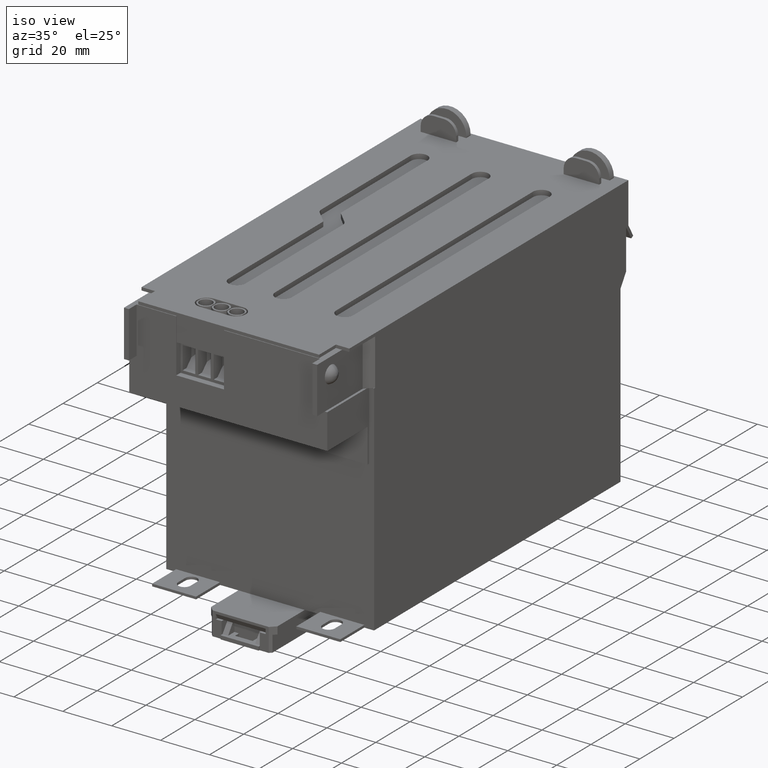
[diagram: clean part render]
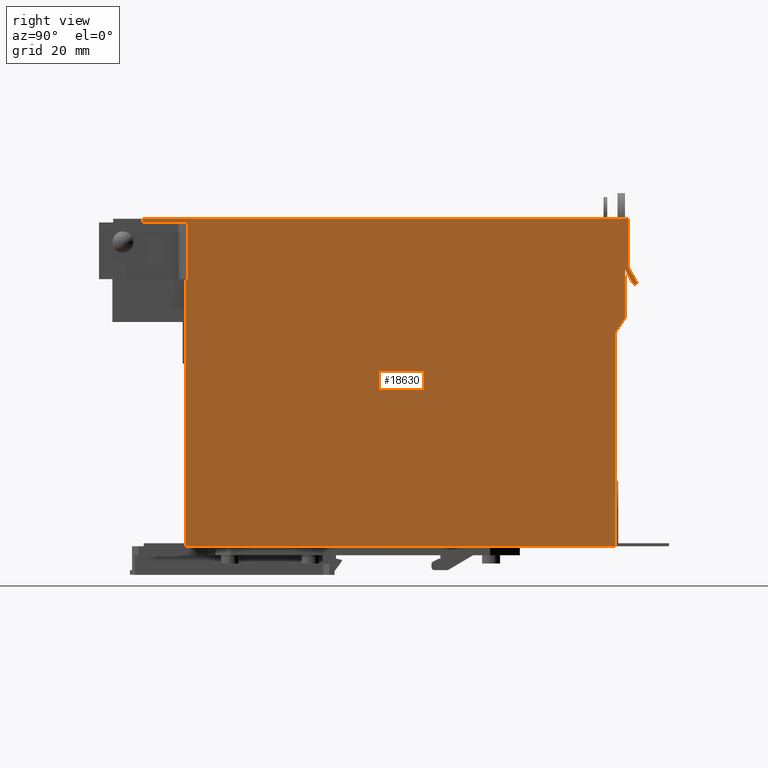
[diagram: tour spotlight — one face highlighted and labeled with its STEP entity id]
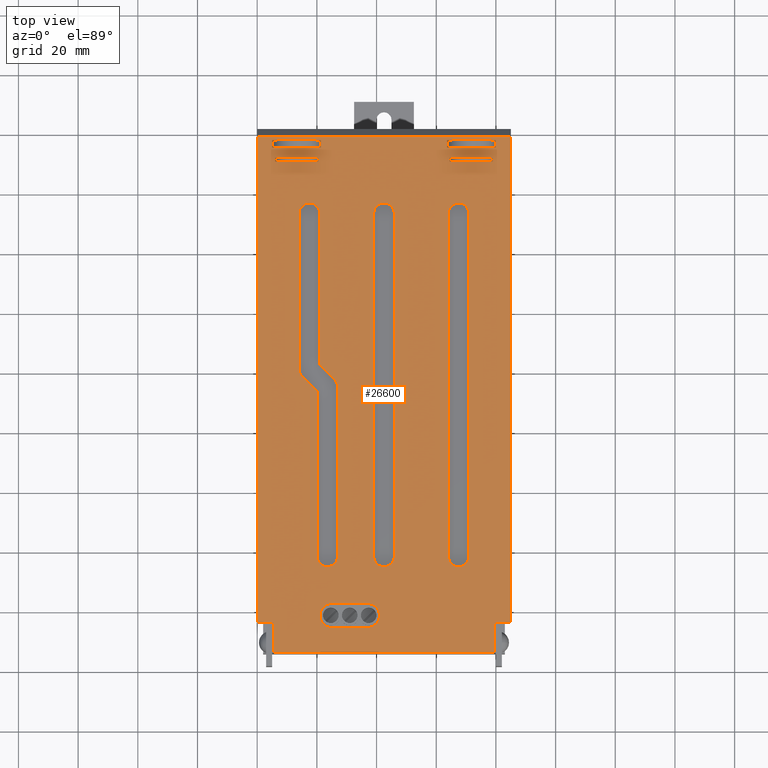
[diagram: tour spotlight — one face highlighted and labeled with its STEP entity id]
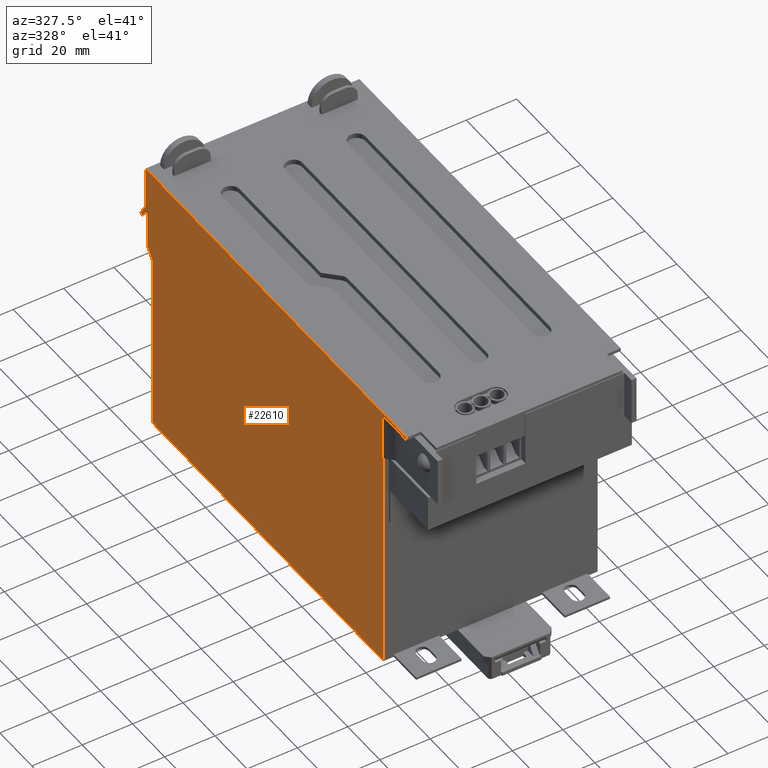
[diagram: tour spotlight — one face highlighted and labeled with its STEP entity id]
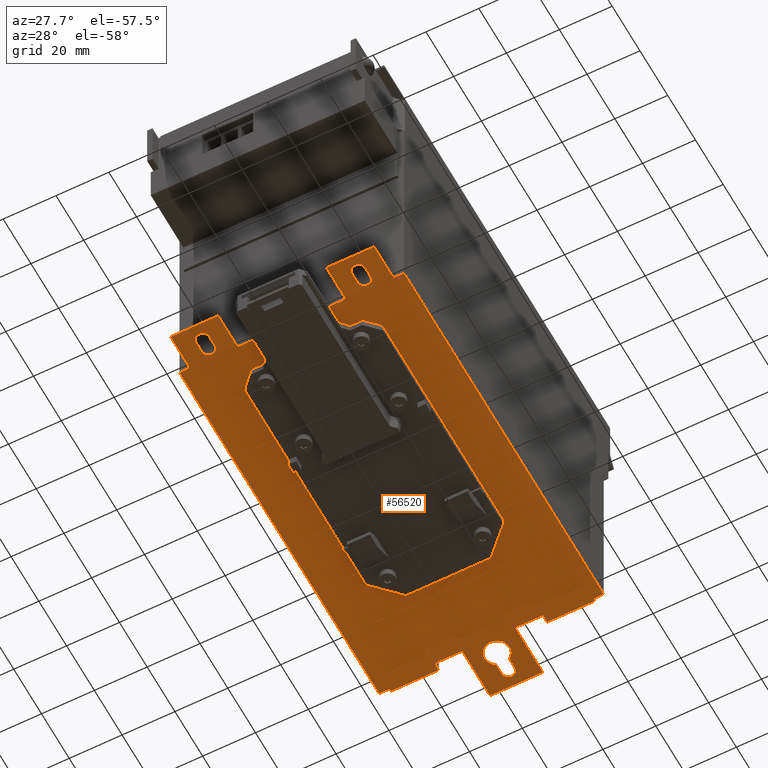
[diagram: tour spotlight — one face highlighted and labeled with its STEP entity id]
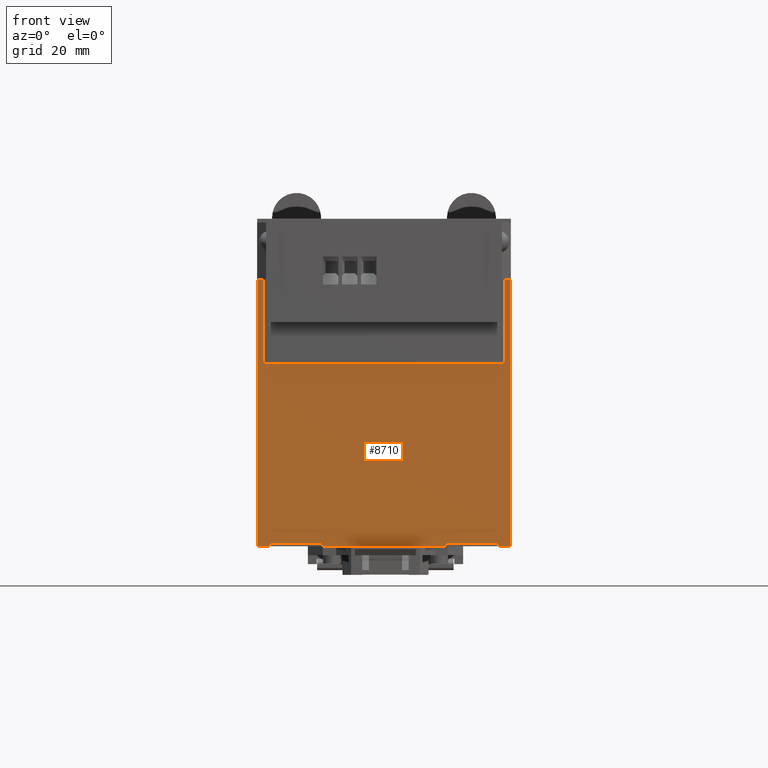
[diagram: tour spotlight — one face highlighted and labeled with its STEP entity id]
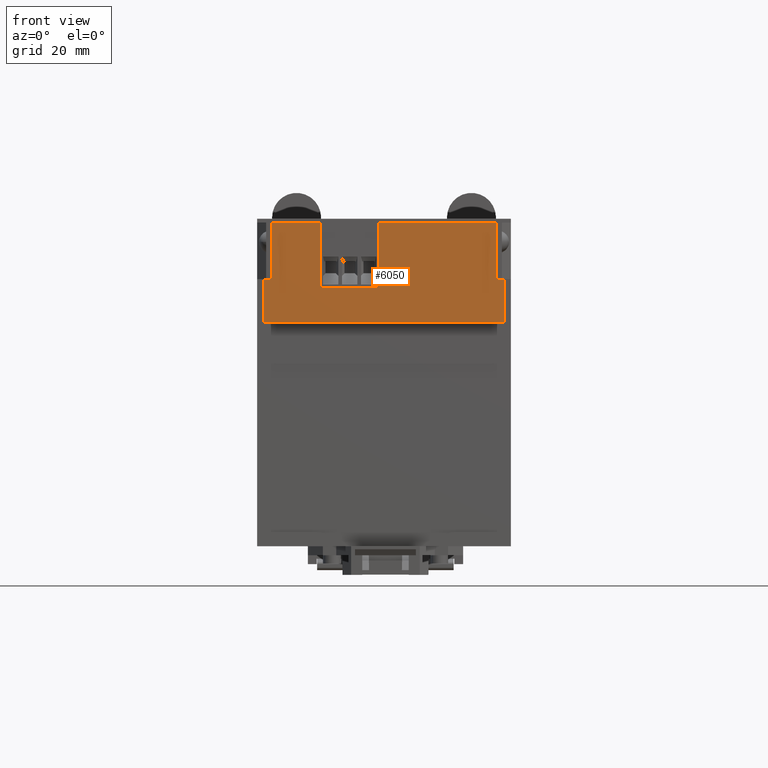
[diagram: tour spotlight — one face highlighted and labeled with its STEP entity id]
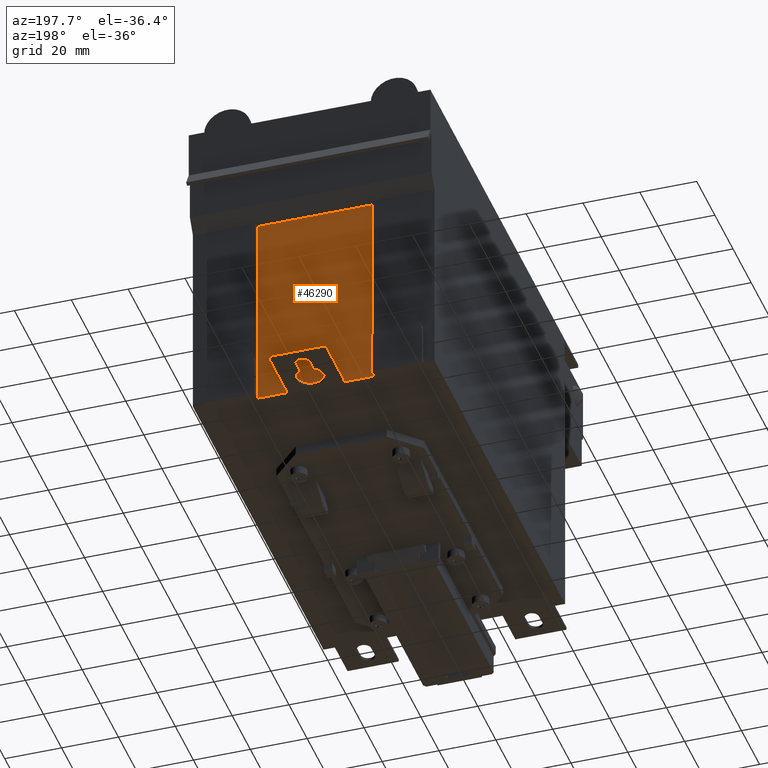
[diagram: tour spotlight — one face highlighted and labeled with its STEP entity id]
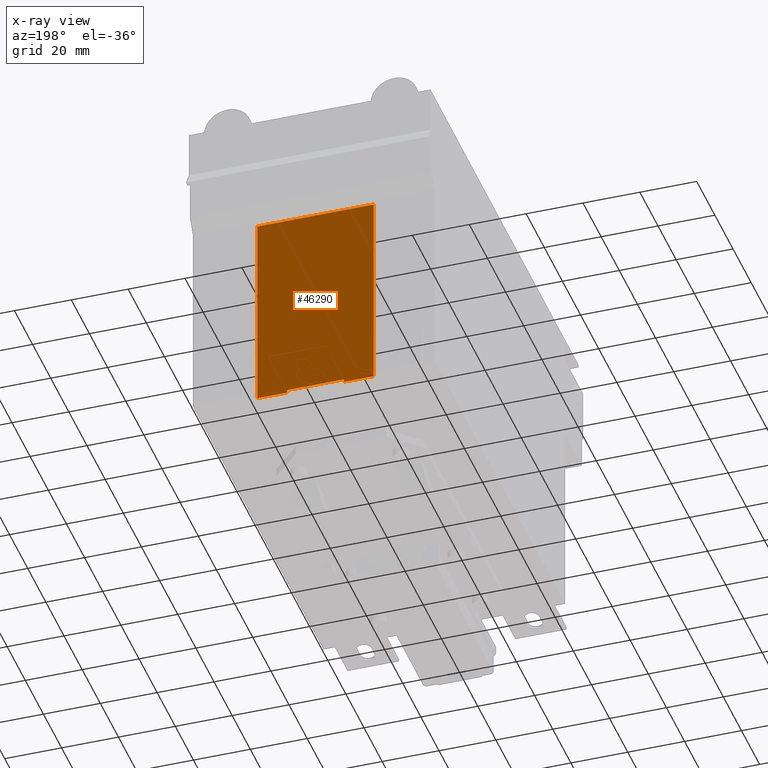
[diagram: x-ray of the same camera — body ghosted, this tour face saturated]
A machine part: a face-by-face anatomy tour. The part has 370 B-rep faces; the first image is the clean iso view, then the 7 largest visible faces are spotlighted one at a time (largest first), each with its STEP entity span.

Face 1 — right view, entity #18630. In plain terms, the highlighted planar face has unit normal (1, -0, -0).
Definition (entity closure, byte-faithful):
#7670=CARTESIAN_POINT('',(42.5,88.5,1.));
#7680=VERTEX_POINT('',#7670);
#7710=CARTESIAN_POINT('',(42.5,0.,1.));
#7720=DIRECTION('',(0.,-1.,0.));
#7730=VECTOR('',#7720,1.);
#7740=LINE('',#7710,#7730);
#7750=CARTESIAN_POINT('',(42.5,-1.,1.));
#7760=VERTEX_POINT('',#7750);
#7770=EDGE_CURVE('',#7680,#7760,#7740,.T.);
#9310=CARTESIAN_POINT('',(42.5,0.,0.414213562370027));
#9320=DIRECTION('',(0.,-1.,0.));
#9330=VECTOR('',#9320,1.);
#9340=LINE('',#9310,#9330);
#9350=CARTESIAN_POINT('',(42.5,107.5,0.414213562370027));
#9360=VERTEX_POINT('',#9350);
#9370=CARTESIAN_POINT('',(42.5,88.5,0.414213562370027));
#9380=VERTEX_POINT('',#9370);
#9390=EDGE_CURVE('',#9360,#9380,#9340,.T.);
#17540=CARTESIAN_POINT('',(42.5,111.492106913472,19.5959203938679));
#17550=DIRECTION('',(1.,0.,0.));
#17560=DIRECTION('',(0.,-1.,0.));
#17570=AXIS2_PLACEMENT_3D('',#17540,#17550,#17560);
#17580=PLANE('',#17570);
#17590=CARTESIAN_POINT('',(42.5,-1.,0.));
#17600=DIRECTION('',(0.,0.,1.));
#17610=VECTOR('',#17600,1.);
#17620=LINE('',#17590,#17610);
#17630=CARTESIAN_POINT('',(42.5,-1.,-143.));
#17640=VERTEX_POINT('',#17630);
#17650=EDGE_CURVE('',#17640,#7760,#17620,.T.);
#17660=ORIENTED_EDGE('',*,*,#17650,.F.);
#17670=ORIENTED_EDGE('',*,*,#7770,.T.);
#17680=CARTESIAN_POINT('',(42.5,88.5,0.));
#17690=DIRECTION('',(0.,0.,1.));
#17700=VECTOR('',#17690,1.);
#17710=LINE('',#17680,#17700);
#17720=EDGE_CURVE('',#9380,#7680,#17710,.T.);
#17730=ORIENTED_EDGE('',*,*,#17720,.T.);
#17740=ORIENTED_EDGE('',*,*,#9390,.T.);
#17750=CARTESIAN_POINT('',(42.5,107.5,0.));
#17760=DIRECTION('',(0.,0.,-1.));
#17770=VECTOR('',#17760,1.);
#17780=LINE('',#17750,#17770);
#17790=CARTESIAN_POINT('',(42.5,107.5,15.45));
#17800=VERTEX_POINT('',#17790);
#17810=EDGE_CURVE('',#17800,#9360,#17780,.T.);
#17820=ORIENTED_EDGE('',*,*,#17810,.T.);
#17830=CARTESIAN_POINT('',(42.5,0.,15.45));
#17840=DIRECTION('',(0.,1.,0.));
#17850=VECTOR('',#17840,1.);
#17860=LINE('',#17830,#17850);
#17870=CARTESIAN_POINT('',(42.5,108.748292500948,15.45));
#17880=VERTEX_POINT('',#17870);
#17890=EDGE_CURVE('',#17800,#17880,#17860,.T.);
#17900=ORIENTED_EDGE('',*,*,#17890,.F.);
#17910=CARTESIAN_POINT('',(42.5,108.748292500948,0.));
#17920=DIRECTION('',(0.,0.,-1.));
#17930=VECTOR('',#17920,1.);
#17940=LINE('',#17910,#17930);
#17950=CARTESIAN_POINT('',(42.5,108.748292500948,-147.55));
#17960=VERTEX_POINT('',#17950);
#17970=EDGE_CURVE('',#17880,#17960,#17940,.T.);
#17980=ORIENTED_EDGE('',*,*,#17970,.F.);
#17990=CARTESIAN_POINT('',(42.5,0.,-147.55));
#18000=DIRECTION('',(0.,1.,0.));
#18010=VECTOR('',#18000,1.);
#18020=LINE('',#17990,#18010);
#18030=CARTESIAN_POINT('',(42.5,92.0849364904861,-147.55));
#18040=VERTEX_POINT('',#18030);
#18050=EDGE_CURVE('',#18040,#17960,#18020,.T.);
#18060=ORIENTED_EDGE('',*,*,#18050,.T.);
#18070=CARTESIAN_POINT('',(42.5,0.,-200.715262871093));
#18080=DIRECTION('',(0.,-0.866025403784433,-0.50000000000001));
#18090=VECTOR('',#18080,1.);
#18100=LINE('',#18070,#18090);
#18110=CARTESIAN_POINT('',(42.5,87.1788475772627,-150.382531754718));
#18120=VERTEX_POINT('',#18110);
#18130=EDGE_CURVE('',#18040,#18120,#18100,.T.);
#18140=ORIENTED_EDGE('',*,*,#18130,.F.);
#18150=CARTESIAN_POINT('',(42.5,0.355452387253636,0.));
#18160=DIRECTION('',(0.,-0.500000000000023,0.866025403784426));
#18170=VECTOR('',#18160,1.);
#18180=LINE('',#18150,#18170);
#18190=CARTESIAN_POINT('',(42.5,86.5538475772759,-149.30000000001));
#18200=VERTEX_POINT('',#18190);
#18210=EDGE_CURVE('',#18120,#18200,#18180,.T.);
#18220=ORIENTED_EDGE('',*,*,#18210,.F.);
#18230=CARTESIAN_POINT('',(42.5,0.,-199.27188719815));
#18240=DIRECTION('',(0.,-0.866025403784432,-0.500000000000011));
#18250=VECTOR('',#18240,1.);
#18260=LINE('',#18230,#18250);
#18270=CARTESIAN_POINT('',(42.5,91.75,-146.3));
#18280=VERTEX_POINT('',#18270);
#18290=EDGE_CURVE('',#18280,#18200,#18260,.T.);
#18300=ORIENTED_EDGE('',*,*,#18290,.T.);
#18310=CARTESIAN_POINT('',(42.5,91.75,0.));
#18320=DIRECTION('',(0.,0.,1.));
#18330=VECTOR('',#18320,1.);
#18340=LINE('',#18310,#18330);
#18350=CARTESIAN_POINT('',(42.5,91.75,-146.2565865962));
#18360=VERTEX_POINT('',#18350);
#18370=EDGE_CURVE('',#18280,#18360,#18340,.T.);
#18380=ORIENTED_EDGE('',*,*,#18370,.F.);
#18390=CARTESIAN_POINT('',(42.5,0.,-146.2565865962));
#18400=DIRECTION('',(0.,-1.,0.));
#18410=VECTOR('',#18400,1.);
#18420=LINE('',#18390,#18410);
#18430=CARTESIAN_POINT('',(42.5,75.4609170961234,-146.2565865962));
#18440=VERTEX_POINT('',#18430);
#18450=EDGE_CURVE('',#18360,#18440,#18420,.T.);
#18460=ORIENTED_EDGE('',*,*,#18450,.F.);
#18470=CARTESIAN_POINT('',(42.5,0.,-97.2516940443306));
#18480=DIRECTION('',(0.,-0.838670567945429,0.54463903501502));
#18490=VECTOR('',#18480,1.);
#18500=LINE('',#18470,#18490);
#18510=CARTESIAN_POINT('',(42.5,70.4462134950067,-143.));
#18520=VERTEX_POINT('',#18510);
#18530=EDGE_CURVE('',#18440,#18520,#18500,.T.);
#18540=ORIENTED_EDGE('',*,*,#18530,.F.);
#18550=CARTESIAN_POINT('',(42.5,0.,-143.));
#18560=DIRECTION('',(0.,1.,0.));
#18570=VECTOR('',#18560,1.);
#18580=LINE('',#18550,#18570);
#18590=EDGE_CURVE('',#17640,#18520,#18580,.T.);
#18600=ORIENTED_EDGE('',*,*,#18590,.T.);
#18610=EDGE_LOOP('',(#18600,#18540,#18460,#18380,#18300,#18220,#18140,
#18060,#17980,#17900,#17820,#17740,#17730,#17670,#17660));
#18620=FACE_OUTER_BOUND('',#18610,.T.);
#18630=ADVANCED_FACE('',(#18620),#17580,.T.);

Face 2 — top view, entity #26600. In plain terms, the highlighted planar face has unit normal (0, 0, 1).
Definition (entity closure, byte-faithful):
#1800=CARTESIAN_POINT('',(22.,108.748872513054,0.));
#1810=DIRECTION('',(0.,0.,1.));
#1820=VECTOR('',#1810,1.);
#1830=LINE('',#1800,#1820);
#1840=CARTESIAN_POINT('',(22.,108.748872513054,-140.3));
#1850=VERTEX_POINT('',#1840);
#1860=CARTESIAN_POINT('',(22.,108.748872513054,-139.05));
#1870=VERTEX_POINT('',#1860);
#1880=EDGE_CURVE('',#1850,#1870,#1830,.T.);
#2270=CARTESIAN_POINT('',(0.,108.74949496507,15.45));
#2280=DIRECTION('',(-0.999999999599746,2.8293273437604E-5,0.));
#2290=VECTOR('',#2280,1.);
#2300=LINE('',#2270,#2290);
#2310=CARTESIAN_POINT('',(-37.,108.750541816187,15.45));
#2320=VERTEX_POINT('',#2310);
#2330=CARTESIAN_POINT('',(-42.5,108.750697429191,15.45));
#2340=VERTEX_POINT('',#2330);
#2350=EDGE_CURVE('',#2320,#2340,#2300,.T.);
#15190=CARTESIAN_POINT('',(-17.5050452697898,108.749990240102,17.05));
#15200=VERTEX_POINT('',#15190);
#15370=CARTESIAN_POINT('',(-5.50504528900204,108.749650720822,17.05));
#15380=VERTEX_POINT('',#15370);
#15410=CARTESIAN_POINT('',(0.,108.74949496507,17.05));
#15420=DIRECTION('',(0.999999999599746,-2.8293273437604E-5,0.));
#15430=VECTOR('',#15420,1.);
#15440=LINE('',#15410,#15430);
#15450=EDGE_CURVE('',#15200,#15380,#15440,.T.);
#15840=CARTESIAN_POINT('',(-36.5,108.750527669551,-140.3));
#15850=VERTEX_POINT('',#15840);
#15880=CARTESIAN_POINT('',(0.,108.74949496507,-140.3));
#15890=DIRECTION('',(0.999999999599746,-2.8293273437604E-5,0.));
#15900=VECTOR('',#15890,1.);
#15910=LINE('',#15880,#15900);
#15920=CARTESIAN_POINT('',(-22.,108.750117417086,-140.3));
#15930=VERTEX_POINT('',#15920);
#15940=EDGE_CURVE('',#15850,#15930,#15910,.T.);
#16640=CARTESIAN_POINT('',(-17.5050452709276,108.749990240102,
13.050000000015));
#16650=DIRECTION('',(-2.82932734344495E-5,-0.999999999599746,0.));
#16660=DIRECTION('',(-0.999999999599746,2.82932734344495E-5,0.));
#16670=AXIS2_PLACEMENT_3D('',#16640,#16650,#16660);
#16680=CIRCLE('',#16670,3.99999999998498);
#16690=CARTESIAN_POINT('',(-17.5050452697898,108.749990240102,9.05));
#16700=VERTEX_POINT('',#16690);
#16710=EDGE_CURVE('',#15200,#16700,#16680,.T.);
#17870=CARTESIAN_POINT('',(42.5,108.748292500948,15.45));
#17880=VERTEX_POINT('',#17870);
#17910=CARTESIAN_POINT('',(42.5,108.748292500948,0.));
#17920=DIRECTION('',(0.,0.,-1.));
#17930=VECTOR('',#17920,1.);
#17940=LINE('',#17910,#17930);
#17950=CARTESIAN_POINT('',(42.5,108.748292500948,-147.55));
#17960=VERTEX_POINT('',#17950);
#17970=EDGE_CURVE('',#17880,#17960,#17940,.T.);
#22330=CARTESIAN_POINT('',(-42.5,108.750697429191,-147.55));
#22340=VERTEX_POINT('',#22330);
#22370=CARTESIAN_POINT('',(-42.5,108.750697429191,0.));
#22380=DIRECTION('',(0.,0.,-1.));
#22390=VECTOR('',#22380,1.);
#22400=LINE('',#22370,#22390);
#22410=EDGE_CURVE('',#2340,#22340,#22400,.T.);
#23010=CARTESIAN_POINT('',(-44.6251071,108.750757555428,29.5701071));
#23020=DIRECTION('',(2.8293273437604E-5,0.999999999599746,0.));
#23030=DIRECTION('',(0.999999999599746,-2.8293273437604E-5,0.));
#23040=AXIS2_PLACEMENT_3D('',#23010,#23020,#23030);
#23050=PLANE('',#23040);
#23060=CARTESIAN_POINT('',(0.,108.74949496507,15.45));
#23070=DIRECTION('',(-0.999999999599746,2.8293273437604E-5,0.));
#23080=VECTOR('',#23070,1.);
#23090=LINE('',#23060,#23080);
#23100=CARTESIAN_POINT('',(36.9999999560921,108.748448113953,15.45));
#23110=VERTEX_POINT('',#23100);
#23120=EDGE_CURVE('',#17880,#23110,#23090,.T.);
#23130=ORIENTED_EDGE('',*,*,#23120,.F.);
#23140=CARTESIAN_POINT('',(37.,108.748448113952,0.));
#23150=DIRECTION('',(0.,0.,1.));
#23160=VECTOR('',#23150,1.);
#23170=LINE('',#23140,#23160);
#23180=CARTESIAN_POINT('',(36.9999999560921,108.748448113953,25.25));
#23190=VERTEX_POINT('',#23180);
#23200=EDGE_CURVE('',#23110,#23190,#23170,.T.);
#23210=ORIENTED_EDGE('',*,*,#23200,.F.);
#23220=CARTESIAN_POINT('',(0.,108.74949496507,25.25));
#23230=DIRECTION('',(-0.999999999599746,2.8293273437604E-5,0.));
#23240=VECTOR('',#23230,1.);
#23250=LINE('',#23220,#23240);
#23260=CARTESIAN_POINT('',(-37.,108.750541816187,25.25));
#23270=VERTEX_POINT('',#23260);
#23280=EDGE_CURVE('',#23190,#23270,#23250,.T.);
#23290=ORIENTED_EDGE('',*,*,#23280,.F.);
#23300=CARTESIAN_POINT('',(-37.,108.750541816187,0.));
#23310=DIRECTION('',(0.,0.,-1.));
#23320=VECTOR('',#23310,1.);
#23330=LINE('',#23300,#23320);
#23340=EDGE_CURVE('',#23270,#2320,#23330,.T.);
#23350=ORIENTED_EDGE('',*,*,#23340,.F.);
#23360=ORIENTED_EDGE('',*,*,#2350,.F.);
#23370=ORIENTED_EDGE('',*,*,#22410,.F.);
#23380=CARTESIAN_POINT('',(0.,108.74949496507,-147.55));
#23390=DIRECTION('',(0.999999999599746,-2.8293273437604E-5,0.));
#23400=VECTOR('',#23390,1.);
#23410=LINE('',#23380,#23400);
#23420=EDGE_CURVE('',#22340,#17960,#23410,.T.);
#23430=ORIENTED_EDGE('',*,*,#23420,.F.);
#23440=ORIENTED_EDGE('',*,*,#17970,.T.);
#23450=EDGE_LOOP('',(#23440,#23430,#23370,#23360,#23350,#23290,#23210,
#23130));
#23460=FACE_OUTER_BOUND('',#23450,.T.);
#23470=CARTESIAN_POINT('',(-5.50499999862161,108.74965071954,
13.050000000016));
#23480=DIRECTION('',(-2.82932734448883E-5,-0.999999999599745,0.));
#23490=DIRECTION('',(-0.999999999599745,2.82932734448883E-5,0.));
#23500=AXIS2_PLACEMENT_3D('',#23470,#23480,#23490);
#23510=CIRCLE('',#23500,4.000000000016);
#23520=CARTESIAN_POINT('',(-5.50504528900204,108.749650720822,
9.05000000025638));
#23530=VERTEX_POINT('',#23520);
#23540=EDGE_CURVE('',#23530,#15380,#23510,.T.);
#23550=ORIENTED_EDGE('',*,*,#23540,.T.);
#23560=CARTESIAN_POINT('',(0.,108.74949496507,9.05));
#23570=DIRECTION('',(-0.999999999599746,2.8293273437604E-5,0.));
#23580=VECTOR('',#23570,1.);
#23590=LINE('',#23560,#23580);
#23600=EDGE_CURVE('',#23530,#16700,#23590,.T.);
#23610=ORIENTED_EDGE('',*,*,#23600,.F.);
#23620=ORIENTED_EDGE('',*,*,#16710,.T.);
#23630=ORIENTED_EDGE('',*,*,#15450,.F.);
#23640=EDGE_LOOP('',(#23630,#23620,#23610,#23550));
#23650=FACE_BOUND('',#23640,.T.);
#23660=CARTESIAN_POINT('',(-37.5,108.750555962824,0.));
#23670=DIRECTION('',(0.,0.,-1.));
#23680=VECTOR('',#23670,1.);
#23690=LINE('',#23660,#23680);
#23700=CARTESIAN_POINT('',(-37.5,108.750555962824,-143.7565865962));
#23710=VERTEX_POINT('',#23700);
#23720=CARTESIAN_POINT('',(-37.5,108.750555962824,-146.2565865962));
#23730=VERTEX_POINT('',#23720);
#23740=EDGE_CURVE('',#23710,#23730,#23690,.T.);
#23750=ORIENTED_EDGE('',*,*,#23740,.T.);
#23760=CARTESIAN_POINT('',(0.,108.74949496507,-143.7565865962));
#23770=DIRECTION('',(-0.999999999599746,2.8293273437604E-5,0.));
#23780=VECTOR('',#23770,1.);
#23790=LINE('',#23760,#23780);
#23800=CARTESIAN_POINT('',(-21.1,108.75009195314,-143.7565865962));
#23810=VERTEX_POINT('',#23800);
#23820=EDGE_CURVE('',#23810,#23710,#23790,.T.);
#23830=ORIENTED_EDGE('',*,*,#23820,.T.);
#23840=CARTESIAN_POINT('',(-21.1,108.75009195314,0.));
#23850=DIRECTION('',(0.,0.,1.));
#23860=VECTOR('',#23850,1.);
#23870=LINE('',#23840,#23860);
#23880=CARTESIAN_POINT('',(-21.1,108.75009195314,-146.2565865962));
#23890=VERTEX_POINT('',#23880);
#23900=EDGE_CURVE('',#23890,#23810,#23870,.T.);
#23910=ORIENTED_EDGE('',*,*,#23900,.T.);
#23920=CARTESIAN_POINT('',(0.,108.74949496507,-146.2565865962));
#23930=DIRECTION('',(-0.999999999599746,2.8293273437604E-5,0.));
#23940=VECTOR('',#23930,1.);
#23950=LINE('',#23920,#23940);
#23960=EDGE_CURVE('',#23890,#23730,#23950,.T.);
#23970=ORIENTED_EDGE('',*,*,#23960,.F.);
#23980=EDGE_LOOP('',(#23970,#23910,#23830,#23750));
#23990=FACE_BOUND('',#23980,.T.);
#24000=CARTESIAN_POINT('',(37.5,108.748433967316,0.));
#24010=DIRECTION('',(0.,0.,-1.));
#24020=VECTOR('',#24010,1.);
#24030=LINE('',#24000,#24020);
#24040=CARTESIAN_POINT('',(37.5,108.748433967316,-143.7565865962));
#24050=VERTEX_POINT('',#24040);
#24060=CARTESIAN_POINT('',(37.5,108.748433967316,-146.2565865962));
#24070=VERTEX_POINT('',#24060);
#24080=EDGE_CURVE('',#24050,#24070,#24030,.T.);
#24090=ORIENTED_EDGE('',*,*,#24080,.F.);
#24100=CARTESIAN_POINT('',(0.,108.74949496507,-146.2565865962));
#24110=DIRECTION('',(-0.999999999599746,2.8293273437604E-5,0.));
#24120=VECTOR('',#24110,1.);
#24130=LINE('',#24100,#24120);
#24140=CARTESIAN_POINT('',(21.1,108.748897977,-146.2565865962));
#24150=VERTEX_POINT('',#24140);
#24160=EDGE_CURVE('',#24070,#24150,#24130,.T.);
#24170=ORIENTED_EDGE('',*,*,#24160,.F.);
#24180=CARTESIAN_POINT('',(21.1,108.748897977,0.));
#24190=DIRECTION('',(0.,0.,1.));
#24200=VECTOR('',#24190,1.);
#24210=LINE('',#24180,#24200);
#24220=CARTESIAN_POINT('',(21.1,108.748897977,-143.7565865962));
#24230=VERTEX_POINT('',#24220);
#24240=EDGE_CURVE('',#24150,#24230,#24210,.T.);
#24250=ORIENTED_EDGE('',*,*,#24240,.F.);
#24260=CARTESIAN_POINT('',(0.,108.74949496507,-143.7565865962));
#24270=DIRECTION('',(0.999999999599746,-2.8293273437604E-5,0.));
#24280=VECTOR('',#24270,1.);
#24290=LINE('',#24260,#24280);
#24300=EDGE_CURVE('',#24230,#24050,#24290,.T.);
#24310=ORIENTED_EDGE('',*,*,#24300,.F.);
#24320=EDGE_LOOP('',(#24310,#24250,#24170,#24090));
#24330=FACE_BOUND('',#24320,.T.);
#24340=CARTESIAN_POINT('',(0.,108.74949496507,-140.3));
#24350=DIRECTION('',(-0.999999999599746,2.8293273437604E-5,0.));
#24360=VECTOR('',#24350,1.);
#24370=LINE('',#24340,#24360);
#24380=CARTESIAN_POINT('',(36.5,108.748462260589,-140.3));
#24390=VERTEX_POINT('',#24380);
#24400=EDGE_CURVE('',#24390,#1850,#24370,.T.);
#24410=ORIENTED_EDGE('',*,*,#24400,.F.);
#24420=ORIENTED_EDGE('',*,*,#1880,.F.);
#24430=CARTESIAN_POINT('',(0.,108.74949496507,-139.05));
#24440=DIRECTION('',(0.999999999599746,-2.8293273437604E-5,0.));
#24450=VECTOR('',#24440,1.);
#24460=LINE('',#24430,#24450);
#24470=CARTESIAN_POINT('',(36.5,108.748462260589,-139.05));
#24480=VERTEX_POINT('',#24470);
#24490=EDGE_CURVE('',#1870,#24480,#24460,.T.);
#24500=ORIENTED_EDGE('',*,*,#24490,.F.);
#24510=CARTESIAN_POINT('',(36.5,108.748462260589,0.));
#24520=DIRECTION('',(0.,0.,1.));
#24530=VECTOR('',#24520,1.);
#24540=LINE('',#24510,#24530);
#24550=EDGE_CURVE('',#24390,#24480,#24540,.T.);
#24560=ORIENTED_EDGE('',*,*,#24550,.T.);
#24570=EDGE_LOOP('',(#24560,#24500,#24420,#24410));
#24580=FACE_BOUND('',#24570,.T.);
#24590=CARTESIAN_POINT('',(7.75942675387901E-15,108.74949496507,
-121.749999998648));
#24600=DIRECTION('',(-2.82932734350818E-5,-0.999999999599746,0.));
#24610=DIRECTION('',(-0.999999999599746,2.82932734350818E-5,0.));
#24620=AXIS2_PLACEMENT_3D('',#24590,#24600,#24610);
#24630=CIRCLE('',#24620,3.44948974416367);
#24640=CARTESIAN_POINT('',(-3.44948974278299,108.749592562426,
-121.7500000123));
#24650=VERTEX_POINT('',#24640);
#24660=CARTESIAN_POINT('',(3.44948974278301,108.749397367713,
-121.750000003));
#24670=VERTEX_POINT('',#24660);
#24680=EDGE_CURVE('',#24650,#24670,#24630,.T.);
#24690=ORIENTED_EDGE('',*,*,#24680,.T.);
#24700=CARTESIAN_POINT('',(-3.44948974278299,108.749592562426,0.));
#24710=DIRECTION('',(0.,0.,1.));
#24720=VECTOR('',#24710,1.);
#24730=LINE('',#24700,#24720);
#24740=CARTESIAN_POINT('',(-3.44948974278299,108.749592562426,
-6.74999999699001));
#24750=VERTEX_POINT('',#24740);
#24760=EDGE_CURVE('',#24650,#24750,#24730,.T.);
#24770=ORIENTED_EDGE('',*,*,#24760,.F.);
#24780=CARTESIAN_POINT('',(7.11066081170988E-15,108.74949496507,
-6.75000000135173));
#24790=DIRECTION('',(-2.82932734392015E-5,-0.999999999599746,0.));
#24800=DIRECTION('',(-0.999999999599746,2.82932734392015E-5,0.));
#24810=AXIS2_PLACEMENT_3D('',#24780,#24790,#24800);
#24820=CIRCLE('',#24810,3.44948974416367);
#24830=CARTESIAN_POINT('',(3.44948974278301,108.749397367713,
-6.7499999918));
#24840=VERTEX_POINT('',#24830);
#24850=EDGE_CURVE('',#24840,#24750,#24820,.T.);
#24860=ORIENTED_EDGE('',*,*,#24850,.T.);
#24870=CARTESIAN_POINT('',(3.44948974278301,108.749397367713,0.));
#24880=DIRECTION('',(0.,0.,-1.));
#24890=VECTOR('',#24880,1.);
#24900=LINE('',#24870,#24890);
#24910=EDGE_CURVE('',#24840,#24670,#24900,.T.);
#24920=ORIENTED_EDGE('',*,*,#24910,.F.);
#24930=EDGE_LOOP('',(#24920,#24860,#24770,#24690));
#24940=FACE_BOUND('',#24930,.T.);
#24950=CARTESIAN_POINT('',(0.,108.74949496507,-39.7001119472316));
#24960=DIRECTION('',(0.707106781045037,-2.00063655136432E-5,
0.707106781045035));
#24970=VECTOR('',#24960,1.);
#24980=LINE('',#24950,#24970);
#24990=CARTESIAN_POINT('',(-27.4391575747139,108.750271308658,
-67.1392695359147));
#25000=VERTEX_POINT('',#24990);
#25010=CARTESIAN_POINT('',(-22.6107304589611,108.75013469665,
-62.3108424061926));
#25020=VERTEX_POINT('',#25010);
#25030=EDGE_CURVE('',#25000,#25020,#24980,.T.);
#25040=ORIENTED_EDGE('',*,*,#25030,.F.);
#25050=CARTESIAN_POINT('',(-22.9999999997203,108.750145710359,
-61.9215728751988));
#25060=DIRECTION('',(-2.82932735492941E-5,-0.999999999599745,
6.23204749071773E-14));
#25070=DIRECTION('',(-0.999999999599745,2.82932735492941E-5,0.));
#25080=AXIS2_PLACEMENT_3D('',#25050,#25060,#25070);
#25090=CIRCLE('',#25080,0.550510257165421);
#25100=CARTESIAN_POINT('',(-22.449489732816,108.750130134622,
-61.92157287525));
#25110=VERTEX_POINT('',#25100);
#25120=EDGE_CURVE('',#25020,#25110,#25090,.T.);
#25130=ORIENTED_EDGE('',*,*,#25120,.F.);
#25140=CARTESIAN_POINT('',(-22.44948974278,108.750130134622,0.));
#25150=DIRECTION('',(0.,0.,1.));
#25160=VECTOR('',#25150,1.);
#25170=LINE('',#25140,#25160);
#25180=CARTESIAN_POINT('',(-22.44948974278,108.750130134622,
-6.74999998732));
#25190=VERTEX_POINT('',#25180);
#25200=EDGE_CURVE('',#25110,#25190,#25170,.T.);
#25210=ORIENTED_EDGE('',*,*,#25200,.F.);
#25220=CARTESIAN_POINT('',(-18.9999999998751,108.750032537265,
-6.75000000147357));
#25230=DIRECTION('',(-2.82932734382013E-5,-0.999999999599745,0.));
#25240=DIRECTION('',(-0.999999999599745,2.82932734382013E-5,0.));
#25250=AXIS2_PLACEMENT_3D('',#25220,#25230,#25240);
#25260=CIRCLE('',#25250,3.44948974428562);
#25270=CARTESIAN_POINT('',(-15.5505102569701,108.749934939909,
-6.7499999983));
#25280=VERTEX_POINT('',#25270);
#25290=EDGE_CURVE('',#25280,#25190,#25260,.T.);
#25300=ORIENTED_EDGE('',*,*,#25290,.T.);
#25310=CARTESIAN_POINT('',(-15.55051025722,108.749934939909,0.));
#25320=DIRECTION('',(0.,0.,-1.));
#25330=VECTOR('',#25320,1.);
#25340=LINE('',#25310,#25330);
#25350=CARTESIAN_POINT('',(-15.5505102569671,108.749934939909,
-63.5784271314571));
#25360=VERTEX_POINT('',#25350);
#25370=EDGE_CURVE('',#25280,#25360,#25340,.T.);
#25380=ORIENTED_EDGE('',*,*,#25370,.F.);
#25390=CARTESIAN_POINT('',(-18.9999999982478,108.750032537265,
-63.5784271244283));
#25400=DIRECTION('',(-2.82932734472993E-5,-0.999999999599745,
7.40250062507176E-20));
#25410=DIRECTION('',(-0.999999999599745,2.82932734472993E-5,0.));
#25420=AXIS2_PLACEMENT_3D('',#25390,#25400,#25410);
#25430=CIRCLE('',#25420,3.44948974246188);
#25440=CARTESIAN_POINT('',(-16.5608424080069,108.749963525513,
-66.0175847104486));
#25450=VERTEX_POINT('',#25440);
#25460=EDGE_CURVE('',#25450,#25360,#25430,.T.);
#25470=ORIENTED_EDGE('',*,*,#25460,.T.);
#25480=CARTESIAN_POINT('',(0.,108.74949496507,-49.4567423022602));
#25490=DIRECTION('',(-0.707106781045039,2.00063655136432E-5,
-0.707106781045034));
#25500=VECTOR('',#25490,1.);
#25510=LINE('',#25480,#25500);
#25520=CARTESIAN_POINT('',(-21.3892695314308,108.750100137522,
-70.8460118336908));
#25530=VERTEX_POINT('',#25520);
#25540=EDGE_CURVE('',#25450,#25530,#25510,.T.);
#25550=ORIENTED_EDGE('',*,*,#25540,.F.);
#25560=CARTESIAN_POINT('',(-21.0000000002798,108.750089123812,
-71.2352813742913));
#25570=DIRECTION('',(-2.8293273428683E-5,-0.999999999599745,
2.11499984595476E-20));
#25580=DIRECTION('',(-0.999999999599745,2.8293273428683E-5,0.));
#25590=AXIS2_PLACEMENT_3D('',#25560,#25570,#25580);
#25600=CIRCLE('',#25590,0.55051025716535);
#25610=CARTESIAN_POINT('',(-21.5505102479693,108.750104699549,
-71.23528137424));
#25620=VERTEX_POINT('',#25610);
#25630=EDGE_CURVE('',#25530,#25620,#25600,.T.);
#25640=ORIENTED_EDGE('',*,*,#25630,.F.);
#25650=CARTESIAN_POINT('',(-21.55051025722,108.75010469955,0.));
#25660=DIRECTION('',(0.,0.,-1.));
#25670=VECTOR('',#25660,1.);
#25680=LINE('',#25650,#25670);
#25690=CARTESIAN_POINT('',(-21.55051025722,108.75010469955,
-121.7500000127));
#25700=VERTEX_POINT('',#25690);
#25710=EDGE_CURVE('',#25620,#25700,#25680,.T.);
#25720=ORIENTED_EDGE('',*,*,#25710,.F.);
#25730=CARTESIAN_POINT('',(-24.9999999926149,108.750202296906,
-121.750000006036));
#25740=DIRECTION('',(-2.82932734380045E-5,-0.999999999599745,0.));
#25750=DIRECTION('',(-0.999999999599745,2.82932734380045E-5,0.));
#25760=AXIS2_PLACEMENT_3D('',#25730,#25740,#25750);
#25770=CIRCLE('',#25760,3.44948973677556);
#25780=CARTESIAN_POINT('',(-28.4494897280098,108.750299894262,
-121.7500000017));
#25790=VERTEX_POINT('',#25780);
#25800=EDGE_CURVE('',#25790,#25700,#25770,.T.);
#25810=ORIENTED_EDGE('',*,*,#25800,.T.);
#25820=CARTESIAN_POINT('',(-28.44948974278,108.750299894263,0.));
#25830=DIRECTION('',(0.,0.,1.));
#25840=VECTOR('',#25830,1.);
#25850=LINE('',#25820,#25840);
#25860=CARTESIAN_POINT('',(-28.44948974278,108.750299894263,
-69.5784271186));
#25870=VERTEX_POINT('',#25860);
#25880=EDGE_CURVE('',#25790,#25870,#25850,.T.);
#25890=ORIENTED_EDGE('',*,*,#25880,.F.);
#25900=CARTESIAN_POINT('',(-25.0000000017527,108.750202296906,
-69.5784271250714));
#25910=DIRECTION('',(-2.82932734402621E-5,-0.999999999599745,
3.28972416408062E-16));
#25920=DIRECTION('',(-0.999999999599745,2.82932734402621E-5,0.));
#25930=AXIS2_PLACEMENT_3D('',#25900,#25910,#25920);
#25940=CIRCLE('',#25930,3.44948974246128);
#25950=EDGE_CURVE('',#25000,#25870,#25940,.T.);
#25960=ORIENTED_EDGE('',*,*,#25950,.T.);
#25970=EDGE_LOOP('',(#25960,#25890,#25810,#25720,#25640,#25550,#25470,
#25380,#25300,#25210,#25130,#25040));
#25980=FACE_BOUND('',#25970,.T.);
#25990=CARTESIAN_POINT('',(25.0000000000015,108.748787633234,
-121.74999999865));
#26000=DIRECTION('',(-2.82932734392138E-5,-0.999999999599745,0.));
#26010=DIRECTION('',(-0.999999999599745,2.82932734392138E-5,0.));
#26020=AXIS2_PLACEMENT_3D('',#25990,#26000,#26010);
#26030=CIRCLE('',#26020,3.44948974416217);
#26040=CARTESIAN_POINT('',(21.55051025722,108.74888523059,
-121.7500000026));
#26050=VERTEX_POINT('',#26040);
#26060=CARTESIAN_POINT('',(28.449489742783,108.748690035877,
-121.7500000127));
#26070=VERTEX_POINT('',#26060);
#26080=EDGE_CURVE('',#26050,#26070,#26030,.T.);
#26090=ORIENTED_EDGE('',*,*,#26080,.T.);
#26100=CARTESIAN_POINT('',(21.55051025722,108.74888523059,0.));
#26110=DIRECTION('',(0.,0.,1.));
#26120=VECTOR('',#26110,1.);
#26130=LINE('',#26100,#26120);
#26140=CARTESIAN_POINT('',(21.55051025722,108.74888523059,
-6.74999998732001));
#26150=VERTEX_POINT('',#26140);
#26160=EDGE_CURVE('',#26050,#26150,#26130,.T.);
#26170=ORIENTED_EDGE('',*,*,#26160,.F.);
#26180=CARTESIAN_POINT('',(25.0000000000015,108.748787633234,
-6.75000000135018));
#26190=DIRECTION('',(-2.82932734433335E-5,-0.999999999599745,0.));
#26200=DIRECTION('',(-0.999999999599745,2.82932734433335E-5,0.));
#26210=AXIS2_PLACEMENT_3D('',#26180,#26190,#26200);
#26220=CIRCLE('',#26210,3.44948974416217);
#26230=CARTESIAN_POINT('',(28.449489742783,108.748690035877,
-6.7499999983));
#26240=VERTEX_POINT('',#26230);
#26250=EDGE_CURVE('',#26240,#26150,#26220,.T.);
#26260=ORIENTED_EDGE('',*,*,#26250,.T.);
#26270=CARTESIAN_POINT('',(28.449489742783,108.748690035877,0.));
#26280=DIRECTION('',(0.,0.,-1.));
#26290=VECTOR('',#26280,1.);
#26300=LINE('',#26270,#26290);
#26310=EDGE_CURVE('',#26240,#26070,#26300,.T.);
#26320=ORIENTED_EDGE('',*,*,#26310,.F.);
#26330=EDGE_LOOP('',(#26320,#26260,#26170,#26090));
#26340=FACE_BOUND('',#26330,.T.);
#26350=CARTESIAN_POINT('',(-22.,108.750117417086,0.));
#26360=DIRECTION('',(0.,0.,-1.));
#26370=VECTOR('',#26360,1.);
#26380=LINE('',#26350,#26370);
#26390=CARTESIAN_POINT('',(-22.,108.750117417086,-139.05));
#26400=VERTEX_POINT('',#26390);
#26410=EDGE_CURVE('',#26400,#15930,#26380,.T.);
#26420=ORIENTED_EDGE('',*,*,#26410,.F.);
#26430=ORIENTED_EDGE('',*,*,#15940,.T.);
#26440=CARTESIAN_POINT('',(-36.5,108.750527669551,0.));
#26450=DIRECTION('',(0.,0.,-1.));
#26460=VECTOR('',#26450,1.);
#26470=LINE('',#26440,#26460);
#26480=CARTESIAN_POINT('',(-36.5,108.750527669551,-139.05));
#26490=VERTEX_POINT('',#26480);
#26500=EDGE_CURVE('',#26490,#15850,#26470,.T.);
#26510=ORIENTED_EDGE('',*,*,#26500,.T.);
#26520=CARTESIAN_POINT('',(0.,108.74949496507,-139.05));
#26530=DIRECTION('',(-0.999999999599746,2.8293273437604E-5,0.));
#26540=VECTOR('',#26530,1.);
#26550=LINE('',#26520,#26540);
#26560=EDGE_CURVE('',#26400,#26490,#26550,.T.);
#26570=ORIENTED_EDGE('',*,*,#26560,.T.);
#26580=EDGE_LOOP('',(#26570,#26510,#26430,#26420));
#26590=FACE_BOUND('',#26580,.T.);
#26600=ADVANCED_FACE('',(#23460,#23650,#23990,#24330,#24580,#24940,
#25980,#26340,#26590),#23050,.T.);

Face 3 — auxiliary view, entity #22610. In plain terms, the highlighted planar face has unit normal (-1, 0, 0).
Definition (entity closure, byte-faithful):
#120=CARTESIAN_POINT('',(-42.5,70.4462134950067,-143.));
#130=VERTEX_POINT('',#120);
#160=CARTESIAN_POINT('',(-42.5,0.,-143.));
#170=DIRECTION('',(0.,1.,0.));
#180=VECTOR('',#170,1.);
#190=LINE('',#160,#180);
#200=CARTESIAN_POINT('',(-42.5,-1.,-143.));
#210=VERTEX_POINT('',#200);
#220=EDGE_CURVE('',#210,#130,#190,.T.);
#2330=CARTESIAN_POINT('',(-42.5,108.750697429191,15.45));
#2340=VERTEX_POINT('',#2330);
#2570=CARTESIAN_POINT('',(-42.5,107.5,15.45));
#2580=VERTEX_POINT('',#2570);
#2610=CARTESIAN_POINT('',(-42.5,0.,15.45));
#2620=DIRECTION('',(0.,1.,0.));
#2630=VECTOR('',#2620,1.);
#2640=LINE('',#2610,#2630);
#2650=EDGE_CURVE('',#2580,#2340,#2640,.T.);
#7260=CARTESIAN_POINT('',(-42.5,88.5,1.));
#7270=VERTEX_POINT('',#7260);
#8590=CARTESIAN_POINT('',(-42.5,-1.,1.));
#8600=VERTEX_POINT('',#8590);
#8630=CARTESIAN_POINT('',(-42.5,0.,1.));
#8640=DIRECTION('',(0.,1.,0.));
#8650=VECTOR('',#8640,1.);
#8660=LINE('',#8630,#8650);
#8670=EDGE_CURVE('',#8600,#7270,#8660,.T.);
#13750=CARTESIAN_POINT('',(-42.5,88.5,0.414213562370022));
#13760=VERTEX_POINT('',#13750);
#13790=CARTESIAN_POINT('',(-42.5,0.,0.414213562370022));
#13800=DIRECTION('',(0.,1.,0.));
#13810=VECTOR('',#13800,1.);
#13820=LINE('',#13790,#13810);
#13830=CARTESIAN_POINT('',(-42.5,107.5,0.414213562370022));
#13840=VERTEX_POINT('',#13830);
#13850=EDGE_CURVE('',#13760,#13840,#13820,.T.);
#14380=CARTESIAN_POINT('',(-42.5,88.5,0.));
#14390=DIRECTION('',(0.,0.,1.));
#14400=VECTOR('',#14390,1.);
#14410=LINE('',#14380,#14400);
#14420=EDGE_CURVE('',#13760,#7270,#14410,.T.);
#18800=CARTESIAN_POINT('',(-42.5,87.1788475772627,-150.382531754718));
#18810=VERTEX_POINT('',#18800);
#18890=CARTESIAN_POINT('',(-42.5,92.084936490486,-147.55));
#18900=VERTEX_POINT('',#18890);
#18930=CARTESIAN_POINT('',(-42.5,0.,-200.715262871093));
#18940=DIRECTION('',(0.,0.866025403784433,0.50000000000001));
#18950=VECTOR('',#18940,1.);
#18960=LINE('',#18930,#18950);
#18970=EDGE_CURVE('',#18810,#18900,#18960,.T.);
#21840=CARTESIAN_POINT('',(-42.5,-3.74387453572979,19.5959203938679));
#21850=DIRECTION('',(-1.,0.,0.));
#21860=DIRECTION('',(0.,1.,0.));
#21870=AXIS2_PLACEMENT_3D('',#21840,#21850,#21860);
#21880=PLANE('',#21870);
#21890=ORIENTED_EDGE('',*,*,#220,.F.);
#21900=CARTESIAN_POINT('',(-42.5,0.,-97.2516940443306));
#21910=DIRECTION('',(0.,0.838670567945429,-0.54463903501502));
#21920=VECTOR('',#21910,1.);
#21930=LINE('',#21900,#21920);
#21940=CARTESIAN_POINT('',(-42.5,75.4609170961234,-146.2565865962));
#21950=VERTEX_POINT('',#21940);
#21960=EDGE_CURVE('',#130,#21950,#21930,.T.);
#21970=ORIENTED_EDGE('',*,*,#21960,.F.);
#21980=CARTESIAN_POINT('',(-42.5,0.,-146.2565865962));
#21990=DIRECTION('',(0.,1.,0.));
#22000=VECTOR('',#21990,1.);
#22010=LINE('',#21980,#22000);
#22020=CARTESIAN_POINT('',(-42.5,91.75,-146.2565865962));
#22030=VERTEX_POINT('',#22020);
#22040=EDGE_CURVE('',#21950,#22030,#22010,.T.);
#22050=ORIENTED_EDGE('',*,*,#22040,.F.);
#22060=CARTESIAN_POINT('',(-42.5,91.75,0.));
#22070=DIRECTION('',(0.,0.,1.));
#22080=VECTOR('',#22070,1.);
#22090=LINE('',#22060,#22080);
#22100=CARTESIAN_POINT('',(-42.5,91.75,-146.3));
#22110=VERTEX_POINT('',#22100);
#22120=EDGE_CURVE('',#22110,#22030,#22090,.T.);
#22130=ORIENTED_EDGE('',*,*,#22120,.T.);
#22140=CARTESIAN_POINT('',(-42.5,0.,-199.27188719815));
#22150=DIRECTION('',(0.,0.866025403784432,0.500000000000011));
#22160=VECTOR('',#22150,1.);
#22170=LINE('',#22140,#22160);
#22180=CARTESIAN_POINT('',(-42.5,86.5538475772759,-149.30000000001));
#22190=VERTEX_POINT('',#22180);
#22200=EDGE_CURVE('',#22190,#22110,#22170,.T.);
#22210=ORIENTED_EDGE('',*,*,#22200,.T.);
#22220=CARTESIAN_POINT('',(-42.5,0.355452387253636,0.));
#22230=DIRECTION('',(0.,-0.500000000000023,0.866025403784426));
#22240=VECTOR('',#22230,1.);
#22250=LINE('',#22220,#22240);
#22260=EDGE_CURVE('',#18810,#22190,#22250,.T.);
#22270=ORIENTED_EDGE('',*,*,#22260,.T.);
#22280=ORIENTED_EDGE('',*,*,#18970,.F.);
#22290=CARTESIAN_POINT('',(-42.5,0.,-147.55));
#22300=DIRECTION('',(0.,-1.,0.));
#22310=VECTOR('',#22300,1.);
#22320=LINE('',#22290,#22310);
#22330=CARTESIAN_POINT('',(-42.5,108.750697429191,-147.55));
#22340=VERTEX_POINT('',#22330);
#22350=EDGE_CURVE('',#22340,#18900,#22320,.T.);
#22360=ORIENTED_EDGE('',*,*,#22350,.T.);
#22370=CARTESIAN_POINT('',(-42.5,108.750697429191,0.));
#22380=DIRECTION('',(0.,0.,-1.));
#22390=VECTOR('',#22380,1.);
#22400=LINE('',#22370,#22390);
#22410=EDGE_CURVE('',#2340,#22340,#22400,.T.);
#22420=ORIENTED_EDGE('',*,*,#22410,.T.);
#22430=ORIENTED_EDGE('',*,*,#2650,.T.);
#22440=CARTESIAN_POINT('',(-42.5,107.5,0.));
#22450=DIRECTION('',(0.,0.,-1.));
#22460=VECTOR('',#22450,1.);
#22470=LINE('',#22440,#22460);
#22480=EDGE_CURVE('',#2580,#13840,#22470,.T.);
#22490=ORIENTED_EDGE('',*,*,#22480,.F.);
#22500=ORIENTED_EDGE('',*,*,#13850,.T.);
#22510=ORIENTED_EDGE('',*,*,#14420,.F.);
#22520=ORIENTED_EDGE('',*,*,#8670,.T.);
#22530=CARTESIAN_POINT('',(-42.5,-1.,0.));
#22540=DIRECTION('',(0.,0.,1.));
#22550=VECTOR('',#22540,1.);
#22560=LINE('',#22530,#22550);
#22570=EDGE_CURVE('',#210,#8600,#22560,.T.);
#22580=ORIENTED_EDGE('',*,*,#22570,.T.);
#22590=EDGE_LOOP('',(#22580,#22520,#22510,#22500,#22490,#22430,#22420,
#22360,#22280,#22270,#22210,#22130,#22050,#21970,#21890));
#22600=FACE_OUTER_BOUND('',#22590,.T.);
#22610=ADVANCED_FACE('',(#22600),#21880,.T.);

Face 4 — auxiliary view, entity #56520. In plain terms, the highlighted planar face has unit normal (-0, -0, -1).
Definition (entity closure, byte-faithful):
#200=CARTESIAN_POINT('',(-42.5,-1.,-143.));
#210=VERTEX_POINT('',#200);
#240=CARTESIAN_POINT('',(0.,-1.,-143.));
#250=DIRECTION('',(1.,0.,0.));
#260=VECTOR('',#250,1.);
#270=LINE('',#240,#260);
#280=CARTESIAN_POINT('',(-38.5,-1.,-143.));
#290=VERTEX_POINT('',#280);
#300=EDGE_CURVE('',#210,#290,#270,.T.);
#7750=CARTESIAN_POINT('',(42.5,-1.,1.));
#7760=VERTEX_POINT('',#7750);
#7790=CARTESIAN_POINT('',(0.,-1.,1.));
#7800=DIRECTION('',(-1.,0.,0.));
#7810=VECTOR('',#7800,1.);
#7820=LINE('',#7790,#7810);
#7830=CARTESIAN_POINT('',(38.5,-1.,1.));
#7840=VERTEX_POINT('',#7830);
#7850=EDGE_CURVE('',#7760,#7840,#7820,.T.);
#8070=CARTESIAN_POINT('',(20.5,-1.,1.));
#8080=VERTEX_POINT('',#8070);
#8110=CARTESIAN_POINT('',(0.,-1.,1.));
#8120=DIRECTION('',(-1.,0.,0.));
#8130=VECTOR('',#8120,1.);
#8140=LINE('',#8110,#8130);
#8150=CARTESIAN_POINT('',(14.1117749006083,-1.00022214599537,1.));
#8160=VERTEX_POINT('',#8150);
#8170=EDGE_CURVE('',#8080,#8160,#8140,.T.);
#8230=CARTESIAN_POINT('',(-12.9882250993917,-1.00022214599537,1.));
#8240=VERTEX_POINT('',#8230);
#8270=CARTESIAN_POINT('',(-20.5,-1.,1.));
#8280=VERTEX_POINT('',#8270);
#8290=EDGE_CURVE('',#8240,#8280,#8140,.T.);
#8510=CARTESIAN_POINT('',(-38.5,-1.,1.));
#8520=VERTEX_POINT('',#8510);
#8550=CARTESIAN_POINT('',(0.,-1.,1.));
#8560=DIRECTION('',(-1.,0.,0.));
#8570=VECTOR('',#8560,1.);
#8580=LINE('',#8550,#8570);
#8590=CARTESIAN_POINT('',(-42.5,-1.,1.));
#8600=VERTEX_POINT('',#8590);
#8610=EDGE_CURVE('',#8520,#8600,#8580,.T.);
#8900=CARTESIAN_POINT('',(-10.,-1.,-161.));
#8910=VERTEX_POINT('',#8900);
#8940=CARTESIAN_POINT('',(0.,-1.,-161.));
#8950=DIRECTION('',(1.,0.,0.));
#8960=VECTOR('',#8950,1.);
#8970=LINE('',#8940,#8960);
#8980=CARTESIAN_POINT('',(10.,-1.,-161.));
#8990=VERTEX_POINT('',#8980);
#9000=EDGE_CURVE('',#8910,#8990,#8970,.T.);
#17590=CARTESIAN_POINT('',(42.5,-1.,0.));
#17600=DIRECTION('',(0.,0.,1.));
#17610=VECTOR('',#17600,1.);
#17620=LINE('',#17590,#17610);
#17630=CARTESIAN_POINT('',(42.5,-1.,-143.));
#17640=VERTEX_POINT('',#17630);
#17650=EDGE_CURVE('',#17640,#7760,#17620,.T.);
#22530=CARTESIAN_POINT('',(-42.5,-1.,0.));
#22540=DIRECTION('',(0.,0.,1.));
#22550=VECTOR('',#22540,1.);
#22560=LINE('',#22530,#22550);
#22570=EDGE_CURVE('',#210,#8600,#22560,.T.);
#41290=CARTESIAN_POINT('',(10.,-1.,0.));
#41300=DIRECTION('',(0.,0.,1.));
#41310=VECTOR('',#41300,1.);
#41320=LINE('',#41290,#41310);
#41330=CARTESIAN_POINT('',(10.,-1.,-141.));
#41340=VERTEX_POINT('',#41330);
#41350=EDGE_CURVE('',#8990,#41340,#41320,.T.);
#41700=CARTESIAN_POINT('',(-10.,-1.,-141.));
#41710=VERTEX_POINT('',#41700);
#41760=CARTESIAN_POINT('',(-10.,-1.,0.));
#41770=DIRECTION('',(0.,0.,-1.));
#41780=VECTOR('',#41770,1.);
#41790=LINE('',#41760,#41780);
#41800=EDGE_CURVE('',#41710,#8910,#41790,.T.);
#42180=CARTESIAN_POINT('',(20.5,-1.,-141.));
#42190=VERTEX_POINT('',#42180);
#42220=CARTESIAN_POINT('',(20.5,-1.,0.));
#42230=DIRECTION('',(0.,0.,-1.));
#42240=VECTOR('',#42230,1.);
#42250=LINE('',#42220,#42240);
#42260=CARTESIAN_POINT('',(20.5,-1.,-144.));
#42270=VERTEX_POINT('',#42260);
#42280=EDGE_CURVE('',#42190,#42270,#42250,.T.);
#42730=CARTESIAN_POINT('',(-2.50000000000004,-1.,-155.));
#42740=VERTEX_POINT('',#42730);
#42770=CARTESIAN_POINT('',(-2.5,-1.,0.));
#42780=DIRECTION('',(0.,0.,1.));
#42790=VECTOR('',#42780,1.);
#42800=LINE('',#42770,#42790);
#42810=CARTESIAN_POINT('',(-2.50000000000013,-1.,-151.038873605351));
#42820=VERTEX_POINT('',#42810);
#42830=EDGE_CURVE('',#42740,#42820,#42800,.T.);
#43280=CARTESIAN_POINT('',(2.5,-1.,-155.));
#43290=VERTEX_POINT('',#43280);
#43320=CARTESIAN_POINT('',(1.4738210651899E-14,-1.,-155.));
#43330=DIRECTION('',(0.,-1.,0.));
#43340=DIRECTION('',(1.,0.,0.));
#43350=AXIS2_PLACEMENT_3D('',#43320,#43330,#43340);
#43360=CIRCLE('',#43350,2.50000000000005);
#43370=EDGE_CURVE('',#42740,#43290,#43360,.T.);
#43600=CARTESIAN_POINT('',(2.50000000000025,-1.,-151.038873605351));
#43610=VERTEX_POINT('',#43600);
#43640=CARTESIAN_POINT('',(2.5,-1.,0.));
#43650=DIRECTION('',(0.,0.,-1.));
#43660=VECTOR('',#43650,1.);
#43670=LINE('',#43640,#43660);
#43680=EDGE_CURVE('',#43610,#43290,#43670,.T.);
#43920=CARTESIAN_POINT('',(2.16160422894518E-13,-1.,-147.));
#43930=DIRECTION('',(0.,-1.,0.));
#43940=DIRECTION('',(1.,0.,0.));
#43950=AXIS2_PLACEMENT_3D('',#43920,#43930,#43940);
#43960=CIRCLE('',#43950,4.75000000000017);
#43970=EDGE_CURVE('',#43610,#42820,#43960,.T.);
#44540=CARTESIAN_POINT('',(-38.5,-1.,0.));
#44550=DIRECTION('',(0.,0.,-1.));
#44560=VECTOR('',#44550,1.);
#44570=LINE('',#44540,#44560);
#44580=CARTESIAN_POINT('',(-38.5,-1.,-144.));
#44590=VERTEX_POINT('',#44580);
#44600=EDGE_CURVE('',#290,#44590,#44570,.T.);
#45330=CARTESIAN_POINT('',(38.5,-1.,15.));
#45340=VERTEX_POINT('',#45330);
#45370=CARTESIAN_POINT('',(0.,-1.,15.));
#45380=DIRECTION('',(-1.,0.,0.));
#45390=VECTOR('',#45380,1.);
#45400=LINE('',#45370,#45390);
#45410=CARTESIAN_POINT('',(20.5,-1.,15.));
#45420=VERTEX_POINT('',#45410);
#45430=EDGE_CURVE('',#45340,#45420,#45400,.T.);
#46060=CARTESIAN_POINT('',(0.,-1.,-141.));
#46070=DIRECTION('',(1.,0.,0.));
#46080=VECTOR('',#46070,1.);
#46090=LINE('',#46060,#46080);
#46100=CARTESIAN_POINT('',(-20.5,-1.,-141.));
#46110=VERTEX_POINT('',#46100);
#46120=EDGE_CURVE('',#46110,#41710,#46090,.T.);
#46170=EDGE_CURVE('',#41340,#42190,#46090,.T.);
#46420=CARTESIAN_POINT('',(0.,-1.,-144.));
#46430=DIRECTION('',(-1.,0.,0.));
#46440=VECTOR('',#46430,1.);
#46450=LINE('',#46420,#46440);
#46460=CARTESIAN_POINT('',(-20.5,-1.,-144.));
#46470=VERTEX_POINT('',#46460);
#46480=EDGE_CURVE('',#46470,#44590,#46450,.T.);
#46750=CARTESIAN_POINT('',(-20.5,-1.,0.));
#46760=DIRECTION('',(0.,0.,1.));
#46770=VECTOR('',#46760,1.);
#46780=LINE('',#46750,#46770);
#46790=EDGE_CURVE('',#46470,#46110,#46780,.T.);
#47800=CARTESIAN_POINT('',(38.5,-1.,-144.));
#47810=VERTEX_POINT('',#47800);
#47840=CARTESIAN_POINT('',(38.5,-1.,0.));
#47850=DIRECTION('',(0.,0.,1.));
#47860=VECTOR('',#47850,1.);
#47870=LINE('',#47840,#47860);
#47880=CARTESIAN_POINT('',(38.5,-1.,-143.));
#47890=VERTEX_POINT('',#47880);
#47900=EDGE_CURVE('',#47810,#47890,#47870,.T.);
#48470=CARTESIAN_POINT('',(0.,-1.,-144.));
#48480=DIRECTION('',(-1.,0.,0.));
#48490=VECTOR('',#48480,1.);
#48500=LINE('',#48470,#48490);
#48510=EDGE_CURVE('',#47810,#42270,#48500,.T.);
#49470=CARTESIAN_POINT('',(-32.,-1.,9.));
#49480=VERTEX_POINT('',#49470);
#49510=CARTESIAN_POINT('',(-29.5,-1.,9.00000000000001));
#49520=DIRECTION('',(0.,1.,0.));
#49530=DIRECTION('',(1.,0.,0.));
#49540=AXIS2_PLACEMENT_3D('',#49510,#49520,#49530);
#49550=CIRCLE('',#49540,2.49999999999999);
#49560=CARTESIAN_POINT('',(-27.,-1.,9.));
#49570=VERTEX_POINT('',#49560);
#49580=EDGE_CURVE('',#49480,#49570,#49550,.T.);
#49820=CARTESIAN_POINT('',(-27.,-1.,0.));
#49830=DIRECTION('',(0.,0.,-1.));
#49840=VECTOR('',#49830,1.);
#49850=LINE('',#49820,#49840);
#49860=CARTESIAN_POINT('',(-27.,-1.,5.));
#49870=VERTEX_POINT('',#49860);
#49880=EDGE_CURVE('',#49570,#49870,#49850,.T.);
#50160=CARTESIAN_POINT('',(-32.,-1.,5.));
#50170=VERTEX_POINT('',#50160);
#50220=CARTESIAN_POINT('',(-29.5,-1.,5.));
#50230=DIRECTION('',(0.,1.,0.));
#50240=DIRECTION('',(1.,0.,0.));
#50250=AXIS2_PLACEMENT_3D('',#50220,#50230,#50240);
#50260=CIRCLE('',#50250,2.5);
#50270=EDGE_CURVE('',#49870,#50170,#50260,.T.);
#50450=CARTESIAN_POINT('',(-32.,-1.,0.));
#50460=DIRECTION('',(0.,0.,1.));
#50470=VECTOR('',#50460,1.);
#50480=LINE('',#50450,#50470);
#50490=EDGE_CURVE('',#50170,#49480,#50480,.T.);
#50930=CARTESIAN_POINT('',(-20.5,-1.,0.));
#50940=DIRECTION('',(0.,0.,1.));
#50950=VECTOR('',#50940,1.);
#50960=LINE('',#50930,#50950);
#50970=CARTESIAN_POINT('',(-20.5,-1.,15.));
#50980=VERTEX_POINT('',#50970);
#50990=EDGE_CURVE('',#8280,#50980,#50960,.T.);
#51270=CARTESIAN_POINT('',(-38.5,-1.,15.));
#51280=VERTEX_POINT('',#51270);
#51310=CARTESIAN_POINT('',(-38.5,-1.,0.));
#51320=DIRECTION('',(0.,0.,-1.));
#51330=VECTOR('',#51320,1.);
#51340=LINE('',#51310,#51330);
#51350=EDGE_CURVE('',#51280,#8520,#51340,.T.);
#51550=CARTESIAN_POINT('',(0.,-1.,15.));
#51560=DIRECTION('',(-1.,0.,0.));
#51570=VECTOR('',#51560,1.);
#51580=LINE('',#51550,#51570);
#51590=EDGE_CURVE('',#50980,#51280,#51580,.T.);
#52470=CARTESIAN_POINT('',(27.,-1.,5.));
#52480=VERTEX_POINT('',#52470);
#52510=CARTESIAN_POINT('',(27.,-1.,0.));
#52520=DIRECTION('',(0.,0.,1.));
#52530=VECTOR('',#52520,1.);
#52540=LINE('',#52510,#52530);
#52550=CARTESIAN_POINT('',(27.,-1.,9.));
#52560=VERTEX_POINT('',#52550);
#52570=EDGE_CURVE('',#52480,#52560,#52540,.T.);
#52830=CARTESIAN_POINT('',(29.5,-1.,9.00000000000001));
#52840=DIRECTION('',(0.,-1.,0.));
#52850=DIRECTION('',(1.,0.,0.));
#52860=AXIS2_PLACEMENT_3D('',#52830,#52840,#52850);
#52870=CIRCLE('',#52860,2.49999999999999);
#52880=CARTESIAN_POINT('',(32.,-1.,9.));
#52890=VERTEX_POINT('',#52880);
#52900=EDGE_CURVE('',#52890,#52560,#52870,.T.);
#53140=CARTESIAN_POINT('',(32.,-1.,0.));
#53150=DIRECTION('',(0.,0.,-1.));
#53160=VECTOR('',#53150,1.);
#53170=LINE('',#53140,#53160);
#53180=CARTESIAN_POINT('',(32.,-1.,5.));
#53190=VERTEX_POINT('',#53180);
#53200=EDGE_CURVE('',#52890,#53190,#53170,.T.);
#53470=CARTESIAN_POINT('',(29.5,-1.,5.00000000000001));
#53480=DIRECTION('',(0.,-1.,0.));
#53490=DIRECTION('',(1.,0.,0.));
#53500=AXIS2_PLACEMENT_3D('',#53470,#53480,#53490);
#53510=CIRCLE('',#53500,2.5);
#53520=EDGE_CURVE('',#52480,#53190,#53510,.T.);
#53700=CARTESIAN_POINT('',(20.5,-1.,0.));
#53710=DIRECTION('',(0.,0.,-1.));
#53720=VECTOR('',#53710,1.);
#53730=LINE('',#53700,#53720);
#53740=EDGE_CURVE('',#45420,#8080,#53730,.T.);
#53940=CARTESIAN_POINT('',(38.5,-1.,0.));
#53950=DIRECTION('',(0.,0.,1.));
#53960=VECTOR('',#53950,1.);
#53970=LINE('',#53940,#53960);
#53980=EDGE_CURVE('',#7840,#45340,#53970,.T.);
#54950=CARTESIAN_POINT('',(44.6251071,-1.,19.4001071));
#54960=DIRECTION('',(-0.,-1.,-0.));
#54970=DIRECTION('',(-1.,0.,0.));
#54980=AXIS2_PLACEMENT_3D('',#54950,#54960,#54970);
#54990=PLANE('',#54980);
#55000=ORIENTED_EDGE('',*,*,#52570,.T.);
#55010=ORIENTED_EDGE('',*,*,#53520,.F.);
#55020=ORIENTED_EDGE('',*,*,#53200,.T.);
#55030=ORIENTED_EDGE('',*,*,#52900,.F.);
#55040=EDGE_LOOP('',(#55030,#55020,#55010,#55000));
#55050=FACE_BOUND('',#55040,.T.);
#55060=ORIENTED_EDGE('',*,*,#43370,.F.);
#55070=ORIENTED_EDGE('',*,*,#43680,.T.);
#55080=ORIENTED_EDGE('',*,*,#43970,.F.);
#55090=ORIENTED_EDGE('',*,*,#42830,.T.);
#55100=EDGE_LOOP('',(#55090,#55080,#55070,#55060));
#55110=FACE_BOUND('',#55100,.T.);
#55120=ORIENTED_EDGE('',*,*,#44600,.T.);
#55130=ORIENTED_EDGE('',*,*,#300,.T.);
#55140=ORIENTED_EDGE('',*,*,#22570,.F.);
#55150=ORIENTED_EDGE('',*,*,#8610,.T.);
#55160=ORIENTED_EDGE('',*,*,#51350,.T.);
#55170=ORIENTED_EDGE('',*,*,#51590,.T.);
#55180=ORIENTED_EDGE('',*,*,#50990,.T.);
#55190=ORIENTED_EDGE('',*,*,#8290,.T.);
#55200=CARTESIAN_POINT('',(-12.9882250993917,-1.,0.));
#55210=DIRECTION('',(-1.22407328372272E-16,0.,-1.));
#55220=VECTOR('',#55210,1.);
#55230=LINE('',#55200,#55220);
#55240=CARTESIAN_POINT('',(-12.9882250993917,-1.,-6.0382250993917));
#55250=VERTEX_POINT('',#55240);
#55260=EDGE_CURVE('',#8240,#55250,#55230,.T.);
#55270=ORIENTED_EDGE('',*,*,#55260,.F.);
#55280=CARTESIAN_POINT('',(-6.94999999999997,-1.,0.));
#55290=DIRECTION('',(0.707106781186548,0.,0.707106781186548));
#55300=VECTOR('',#55290,1.);
#55310=LINE('',#55280,#55300);
#55320=CARTESIAN_POINT('',(-16.0000000000001,-1.,-9.0500000000001));
#55330=VERTEX_POINT('',#55320);
#55340=EDGE_CURVE('',#55330,#55250,#55310,.T.);
#55350=ORIENTED_EDGE('',*,*,#55340,.T.);
#55360=CARTESIAN_POINT('',(0.,-1.,-9.05000000000023));
#55370=DIRECTION('',(1.,0.,-1.22407328372272E-16));
#55380=VECTOR('',#55370,1.);
#55390=LINE('',#55360,#55380);
#55400=CARTESIAN_POINT('',(-20.5000000000005,-1.,-9.05000000000027));
#55410=VERTEX_POINT('',#55400);
#55420=EDGE_CURVE('',#55410,#55330,#55390,.T.);
#55430=ORIENTED_EDGE('',*,*,#55420,.T.);
#55440=CARTESIAN_POINT('',(0.,-1.,11.4499999999991));
#55450=DIRECTION('',(0.707106781186566,0.,0.707106781186529));
#55460=VECTOR('',#55450,1.);
#55470=LINE('',#55440,#55460);
#55480=CARTESIAN_POINT('',(-25.5,-1.,-14.0499999999995));
#55490=VERTEX_POINT('',#55480);
#55500=EDGE_CURVE('',#55490,#55410,#55470,.T.);
#55510=ORIENTED_EDGE('',*,*,#55500,.T.);
#55520=CARTESIAN_POINT('',(-25.5,-1.,0.));
#55530=DIRECTION('',(-1.22464679914735E-16,0.,-1.));
#55540=VECTOR('',#55530,1.);
#55550=LINE('',#55520,#55540);
#55560=CARTESIAN_POINT('',(-25.5,-1.,-101.050000000001));
#55570=VERTEX_POINT('',#55560);
#55580=EDGE_CURVE('',#55490,#55570,#55550,.T.);
#55590=ORIENTED_EDGE('',*,*,#55580,.F.);
#55600=CARTESIAN_POINT('',(-126.549999999999,-1.,0.));
#55610=DIRECTION('',(-0.707106781186541,0.,0.707106781186554));
#55620=VECTOR('',#55610,1.);
#55630=LINE('',#55600,#55620);
#55640=CARTESIAN_POINT('',(-15.5000000000006,-1.,-111.05));
#55650=VERTEX_POINT('',#55640);
#55660=EDGE_CURVE('',#55650,#55570,#55630,.T.);
#55670=ORIENTED_EDGE('',*,*,#55660,.T.);
#55680=CARTESIAN_POINT('',(0.,-1.,-111.05));
#55690=DIRECTION('',(1.,0.,-1.22407328372272E-16));
#55700=VECTOR('',#55690,1.);
#55710=LINE('',#55680,#55700);
#55720=CARTESIAN_POINT('',(16.5000000000006,-1.,-111.05));
#55730=VERTEX_POINT('',#55720);
#55740=EDGE_CURVE('',#55650,#55730,#55710,.T.);
#55750=ORIENTED_EDGE('',*,*,#55740,.F.);
#55760=CARTESIAN_POINT('',(127.549999999999,-1.,0.));
#55770=DIRECTION('',(0.707106781186541,0.,0.707106781186554));
#55780=VECTOR('',#55770,1.);
#55790=LINE('',#55760,#55780);
#55800=CARTESIAN_POINT('',(26.5,-1.,-101.050000000001));
#55810=VERTEX_POINT('',#55800);
#55820=EDGE_CURVE('',#55730,#55810,#55790,.T.);
#55830=ORIENTED_EDGE('',*,*,#55820,.F.);
#55840=CARTESIAN_POINT('',(26.5,-1.,0.));
#55850=DIRECTION('',(-1.22464679914735E-16,0.,-1.));
#55860=VECTOR('',#55850,1.);
#55870=LINE('',#55840,#55860);
#55880=CARTESIAN_POINT('',(26.5,-1.,-14.0499999999995));
#55890=VERTEX_POINT('',#55880);
#55900=EDGE_CURVE('',#55890,#55810,#55870,.T.);
#55910=ORIENTED_EDGE('',*,*,#55900,.T.);
#55920=CARTESIAN_POINT('',(0.,-1.,12.4499999999991));
#55930=DIRECTION('',(-0.707106781186566,0.,0.707106781186529));
#55940=VECTOR('',#55930,1.);
#55950=LINE('',#55920,#55940);
#55960=CARTESIAN_POINT('',(21.5000000000004,-1.,-9.05000000000023));
#55970=VERTEX_POINT('',#55960);
#55980=EDGE_CURVE('',#55890,#55970,#55950,.T.);
#55990=ORIENTED_EDGE('',*,*,#55980,.F.);
#56000=CARTESIAN_POINT('',(0.,-1.,-9.05000000000025));
#56010=DIRECTION('',(-1.,0.,1.22407328372272E-16));
#56020=VECTOR('',#56010,1.);
#56030=LINE('',#56000,#56020);
#56040=CARTESIAN_POINT('',(17.0000000000001,-1.,-9.05000000000018));
#56050=VERTEX_POINT('',#56040);
#56060=EDGE_CURVE('',#55970,#56050,#56030,.T.);
#56070=ORIENTED_EDGE('',*,*,#56060,.F.);
#56080=CARTESIAN_POINT('',(7.94999999999996,-1.,0.));
#56090=DIRECTION('',(0.707106781186548,0.,-0.707106781186548));
#56100=VECTOR('',#56090,1.);
#56110=LINE('',#56080,#56100);
#56120=CARTESIAN_POINT('',(14.1117749006083,-1.,-6.16177490060838));
#56130=VERTEX_POINT('',#56120);
#56140=EDGE_CURVE('',#56130,#56050,#56110,.T.);
#56150=ORIENTED_EDGE('',*,*,#56140,.T.);
#56160=CARTESIAN_POINT('',(14.1117749006083,-1.,0.));
#56170=DIRECTION('',(1.22407328372272E-16,0.,1.));
#56180=VECTOR('',#56170,1.);
#56190=LINE('',#56160,#56180);
#56200=EDGE_CURVE('',#56130,#8160,#56190,.T.);
#56210=ORIENTED_EDGE('',*,*,#56200,.F.);
#56220=ORIENTED_EDGE('',*,*,#8170,.T.);
#56230=ORIENTED_EDGE('',*,*,#53740,.T.);
#56240=ORIENTED_EDGE('',*,*,#45430,.T.);
#56250=ORIENTED_EDGE('',*,*,#53980,.T.);
#56260=ORIENTED_EDGE('',*,*,#7850,.T.);
#56270=ORIENTED_EDGE('',*,*,#17650,.T.);
#56280=CARTESIAN_POINT('',(0.,-1.,-143.));
#56290=DIRECTION('',(-1.,0.,0.));
#56300=VECTOR('',#56290,1.);
#56310=LINE('',#56280,#56300);
#56320=EDGE_CURVE('',#17640,#47890,#56310,.T.);
#56330=ORIENTED_EDGE('',*,*,#56320,.F.);
#56340=ORIENTED_EDGE('',*,*,#47900,.T.);
#56350=ORIENTED_EDGE('',*,*,#48510,.F.);
#56360=ORIENTED_EDGE('',*,*,#42280,.T.);
#56370=ORIENTED_EDGE('',*,*,#46170,.T.);
#56380=ORIENTED_EDGE('',*,*,#41350,.T.);
#56390=ORIENTED_EDGE('',*,*,#9000,.T.);
#56400=ORIENTED_EDGE('',*,*,#41800,.T.);
#56410=ORIENTED_EDGE('',*,*,#46120,.T.);
#56420=ORIENTED_EDGE('',*,*,#46790,.T.);
#56430=ORIENTED_EDGE('',*,*,#46480,.F.);
#56440=EDGE_LOOP('',(#56430,#56420,#56410,#56400,#56390,#56380,#56370,
#56360,#56350,#56340,#56330,#56270,#56260,#56250,#56240,#56230,#56220,
#56210,#56150,#56070,#55990,#55910,#55830,#55750,#55670,#55590,#55510,
#55430,#55350,#55270,#55190,#55180,#55170,#55160,#55150,#55140,#55130,
#55120));
#56450=FACE_OUTER_BOUND('',#56440,.T.);
#56460=ORIENTED_EDGE('',*,*,#49880,.T.);
#56470=ORIENTED_EDGE('',*,*,#49580,.T.);
#56480=ORIENTED_EDGE('',*,*,#50490,.T.);
#56490=ORIENTED_EDGE('',*,*,#50270,.T.);
#56500=EDGE_LOOP('',(#56490,#56480,#56470,#56460));
#56510=FACE_BOUND('',#56500,.T.);
#56520=ADVANCED_FACE('',(#55050,#55110,#56450,#56510),#54990,.T.);

Face 5 — front view, entity #8710. In plain terms, the highlighted planar face has unit normal (-0, -1, 0).
Definition (entity closure, byte-faithful):
#4740=CARTESIAN_POINT('',(40.5,88.5,1.));
#4750=VERTEX_POINT('',#4740);
#4840=CARTESIAN_POINT('',(41.91421356237,88.5,1.));
#4850=VERTEX_POINT('',#4840);
#4880=CARTESIAN_POINT('',(0.,88.5,1.));
#4890=DIRECTION('',(-1.,0.,0.));
#4900=VECTOR('',#4890,1.);
#4910=LINE('',#4880,#4900);
#4920=EDGE_CURVE('',#4850,#4750,#4910,.T.);
#7170=CARTESIAN_POINT('',(-44.6251071,-3.2376071,1.));
#7180=DIRECTION('',(0.,0.,1.));
#7190=DIRECTION('',(1.,0.,0.));
#7200=AXIS2_PLACEMENT_3D('',#7170,#7180,#7190);
#7210=PLANE('',#7200);
#7220=CARTESIAN_POINT('',(0.,88.5,1.));
#7230=DIRECTION('',(1.,0.,0.));
#7240=VECTOR('',#7230,1.);
#7250=LINE('',#7220,#7240);
#7260=CARTESIAN_POINT('',(-42.5,88.5,1.));
#7270=VERTEX_POINT('',#7260);
#7280=CARTESIAN_POINT('',(-41.91421356237,88.5,1.));
#7290=VERTEX_POINT('',#7280);
#7300=EDGE_CURVE('',#7270,#7290,#7250,.T.);
#7310=ORIENTED_EDGE('',*,*,#7300,.F.);
#7320=CARTESIAN_POINT('',(0.,88.5,1.));
#7330=DIRECTION('',(-1.,0.,0.));
#7340=VECTOR('',#7330,1.);
#7350=LINE('',#7320,#7340);
#7360=CARTESIAN_POINT('',(-40.5,88.5,1.));
#7370=VERTEX_POINT('',#7360);
#7380=EDGE_CURVE('',#7370,#7290,#7350,.T.);
#7390=ORIENTED_EDGE('',*,*,#7380,.T.);
#7400=CARTESIAN_POINT('',(-40.5,0.,1.));
#7410=DIRECTION('',(0.,-1.,0.));
#7420=VECTOR('',#7410,1.);
#7430=LINE('',#7400,#7420);
#7440=CARTESIAN_POINT('',(-40.5,60.15,1.));
#7450=VERTEX_POINT('',#7440);
#7460=EDGE_CURVE('',#7370,#7450,#7430,.T.);
#7470=ORIENTED_EDGE('',*,*,#7460,.F.);
#7480=CARTESIAN_POINT('',(0.,60.15,1.));
#7490=DIRECTION('',(1.,0.,0.));
#7500=VECTOR('',#7490,1.);
#7510=LINE('',#7480,#7500);
#7520=CARTESIAN_POINT('',(40.5,60.15,1.));
#7530=VERTEX_POINT('',#7520);
#7540=EDGE_CURVE('',#7450,#7530,#7510,.T.);
#7550=ORIENTED_EDGE('',*,*,#7540,.F.);
#7560=CARTESIAN_POINT('',(40.5,0.,1.));
#7570=DIRECTION('',(0.,1.,0.));
#7580=VECTOR('',#7570,1.);
#7590=LINE('',#7560,#7580);
#7600=EDGE_CURVE('',#7530,#4750,#7590,.T.);
#7610=ORIENTED_EDGE('',*,*,#7600,.F.);
#7620=ORIENTED_EDGE('',*,*,#4920,.T.);
#7630=CARTESIAN_POINT('',(0.,88.5,1.));
#7640=DIRECTION('',(1.,0.,0.));
#7650=VECTOR('',#7640,1.);
#7660=LINE('',#7630,#7650);
#7670=CARTESIAN_POINT('',(42.5,88.5,1.));
#7680=VERTEX_POINT('',#7670);
#7690=EDGE_CURVE('',#4850,#7680,#7660,.T.);
#7700=ORIENTED_EDGE('',*,*,#7690,.F.);
#7710=CARTESIAN_POINT('',(42.5,0.,1.));
#7720=DIRECTION('',(0.,-1.,0.));
#7730=VECTOR('',#7720,1.);
#7740=LINE('',#7710,#7730);
#7750=CARTESIAN_POINT('',(42.5,-1.,1.));
#7760=VERTEX_POINT('',#7750);
#7770=EDGE_CURVE('',#7680,#7760,#7740,.T.);
#7780=ORIENTED_EDGE('',*,*,#7770,.F.);
#7790=CARTESIAN_POINT('',(0.,-1.,1.));
#7800=DIRECTION('',(-1.,0.,0.));
#7810=VECTOR('',#7800,1.);
#7820=LINE('',#7790,#7810);
#7830=CARTESIAN_POINT('',(38.5,-1.,1.));
#7840=VERTEX_POINT('',#7830);
#7850=EDGE_CURVE('',#7760,#7840,#7820,.T.);
#7860=ORIENTED_EDGE('',*,*,#7850,.F.);
#7870=CARTESIAN_POINT('',(38.5,0.,1.));
#7880=DIRECTION('',(0.,-1.,0.));
#7890=VECTOR('',#7880,1.);
#7900=LINE('',#7870,#7890);
#7910=CARTESIAN_POINT('',(38.5,0.,1.));
#7920=VERTEX_POINT('',#7910);
#7930=EDGE_CURVE('',#7920,#7840,#7900,.T.);
#7940=ORIENTED_EDGE('',*,*,#7930,.T.);
#7950=CARTESIAN_POINT('',(0.,0.,1.));
#7960=DIRECTION('',(1.,0.,0.));
#7970=VECTOR('',#7960,1.);
#7980=LINE('',#7950,#7970);
#7990=CARTESIAN_POINT('',(20.5,0.,1.));
#8000=VERTEX_POINT('',#7990);
#8010=EDGE_CURVE('',#8000,#7920,#7980,.T.);
#8020=ORIENTED_EDGE('',*,*,#8010,.T.);
#8030=CARTESIAN_POINT('',(20.5,0.,1.));
#8040=DIRECTION('',(0.,1.,0.));
#8050=VECTOR('',#8040,1.);
#8060=LINE('',#8030,#8050);
#8070=CARTESIAN_POINT('',(20.5,-1.,1.));
#8080=VERTEX_POINT('',#8070);
#8090=EDGE_CURVE('',#8080,#8000,#8060,.T.);
#8100=ORIENTED_EDGE('',*,*,#8090,.T.);
#8110=CARTESIAN_POINT('',(0.,-1.,1.));
#8120=DIRECTION('',(-1.,0.,0.));
#8130=VECTOR('',#8120,1.);
#8140=LINE('',#8110,#8130);
#8150=CARTESIAN_POINT('',(14.1117749006083,-1.00022214599537,1.));
#8160=VERTEX_POINT('',#8150);
#8170=EDGE_CURVE('',#8080,#8160,#8140,.T.);
#8180=ORIENTED_EDGE('',*,*,#8170,.F.);
#8190=CARTESIAN_POINT('',(0.,-1.00022214599537,1.));
#8200=DIRECTION('',(-1.,1.22560195905149E-16,0.));
#8210=VECTOR('',#8200,1.);
#8220=LINE('',#8190,#8210);
#8230=CARTESIAN_POINT('',(-12.9882250993917,-1.00022214599537,1.));
#8240=VERTEX_POINT('',#8230);
#8250=EDGE_CURVE('',#8160,#8240,#8220,.T.);
#8260=ORIENTED_EDGE('',*,*,#8250,.F.);
#8270=CARTESIAN_POINT('',(-20.5,-1.,1.));
#8280=VERTEX_POINT('',#8270);
#8290=EDGE_CURVE('',#8240,#8280,#8140,.T.);
#8300=ORIENTED_EDGE('',*,*,#8290,.F.);
#8310=CARTESIAN_POINT('',(-20.5,0.,1.));
#8320=DIRECTION('',(0.,-1.,0.));
#8330=VECTOR('',#8320,1.);
#8340=LINE('',#8310,#8330);
#8350=CARTESIAN_POINT('',(-20.5,0.,1.));
#8360=VERTEX_POINT('',#8350);
#8370=EDGE_CURVE('',#8360,#8280,#8340,.T.);
#8380=ORIENTED_EDGE('',*,*,#8370,.T.);
#8390=CARTESIAN_POINT('',(0.,0.,1.));
#8400=DIRECTION('',(1.,0.,0.));
#8410=VECTOR('',#8400,1.);
#8420=LINE('',#8390,#8410);
#8430=CARTESIAN_POINT('',(-38.5,0.,1.));
#8440=VERTEX_POINT('',#8430);
#8450=EDGE_CURVE('',#8440,#8360,#8420,.T.);
#8460=ORIENTED_EDGE('',*,*,#8450,.T.);
#8470=CARTESIAN_POINT('',(-38.5,0.,1.));
#8480=DIRECTION('',(0.,1.,0.));
#8490=VECTOR('',#8480,1.);
#8500=LINE('',#8470,#8490);
#8510=CARTESIAN_POINT('',(-38.5,-1.,1.));
#8520=VERTEX_POINT('',#8510);
#8530=EDGE_CURVE('',#8520,#8440,#8500,.T.);
#8540=ORIENTED_EDGE('',*,*,#8530,.T.);
#8550=CARTESIAN_POINT('',(0.,-1.,1.));
#8560=DIRECTION('',(-1.,0.,0.));
#8570=VECTOR('',#8560,1.);
#8580=LINE('',#8550,#8570);
#8590=CARTESIAN_POINT('',(-42.5,-1.,1.));
#8600=VERTEX_POINT('',#8590);
#8610=EDGE_CURVE('',#8520,#8600,#8580,.T.);
#8620=ORIENTED_EDGE('',*,*,#8610,.F.);
#8630=CARTESIAN_POINT('',(-42.5,0.,1.));
#8640=DIRECTION('',(0.,1.,0.));
#8650=VECTOR('',#8640,1.);
#8660=LINE('',#8630,#8650);
#8670=EDGE_CURVE('',#8600,#7270,#8660,.T.);
#8680=ORIENTED_EDGE('',*,*,#8670,.F.);
#8690=EDGE_LOOP('',(#8680,#8620,#8540,#8460,#8380,#8300,#8260,#8180,
#8100,#8020,#7940,#7860,#7780,#7700,#7620,#7610,#7550,#7470,#7390,#7310)
);
#8700=FACE_OUTER_BOUND('',#8690,.T.);
#8710=ADVANCED_FACE('',(#8700),#7210,.T.);

Face 6 — front view, entity #6050. In plain terms, the highlighted planar face has unit normal (-0, -1, 0).
Definition (entity closure, byte-faithful):
#840=CARTESIAN_POINT('',(-40.5,74.15,25.5));
#850=VERTEX_POINT('',#840);
#880=CARTESIAN_POINT('',(0.,74.15,25.5));
#890=DIRECTION('',(1.,0.,0.));
#900=VECTOR('',#890,1.);
#910=LINE('',#880,#900);
#920=CARTESIAN_POINT('',(40.5,74.15,25.5));
#930=VERTEX_POINT('',#920);
#940=EDGE_CURVE('',#850,#930,#910,.T.);
#2820=CARTESIAN_POINT('',(0.,107.5,25.5));
#2830=DIRECTION('',(-1.,0.,0.));
#2840=VECTOR('',#2830,1.);
#2850=LINE('',#2820,#2840);
#2860=CARTESIAN_POINT('',(37.5,107.5,25.5));
#2870=VERTEX_POINT('',#2860);
#2880=CARTESIAN_POINT('',(-1.75,107.5,25.5));
#2890=VERTEX_POINT('',#2880);
#2900=EDGE_CURVE('',#2870,#2890,#2850,.T.);
#5040=CARTESIAN_POINT('',(-42.5251071,73.3161429,25.5));
#5050=DIRECTION('',(0.,0.,1.));
#5060=DIRECTION('',(1.,0.,0.));
#5070=AXIS2_PLACEMENT_3D('',#5040,#5050,#5060);
#5080=PLANE('',#5070);
#5090=CARTESIAN_POINT('',(0.,107.5,25.5));
#5100=DIRECTION('',(-1.,0.,0.));
#5110=VECTOR('',#5100,1.);
#5120=LINE('',#5090,#5110);
#5130=CARTESIAN_POINT('',(-21.25,107.5,25.5));
#5140=VERTEX_POINT('',#5130);
#5150=CARTESIAN_POINT('',(-37.5,107.5,25.5));
#5160=VERTEX_POINT('',#5150);
#5170=EDGE_CURVE('',#5140,#5160,#5120,.T.);
#5180=ORIENTED_EDGE('',*,*,#5170,.T.);
#5190=CARTESIAN_POINT('',(-21.25,0.,25.5));
#5200=DIRECTION('',(0.,1.,0.));
#5210=VECTOR('',#5200,1.);
#5220=LINE('',#5190,#5210);
#5230=CARTESIAN_POINT('',(-21.25,85.65,25.5));
#5240=VERTEX_POINT('',#5230);
#5250=EDGE_CURVE('',#5240,#5140,#5220,.T.);
#5260=ORIENTED_EDGE('',*,*,#5250,.T.);
#5270=CARTESIAN_POINT('',(0.,85.65,25.5));
#5280=DIRECTION('',(-1.,0.,0.));
#5290=VECTOR('',#5280,1.);
#5300=LINE('',#5270,#5290);
#5310=CARTESIAN_POINT('',(-1.75,85.65,25.5));
#5320=VERTEX_POINT('',#5310);
#5330=EDGE_CURVE('',#5320,#5240,#5300,.T.);
#5340=ORIENTED_EDGE('',*,*,#5330,.T.);
#5350=CARTESIAN_POINT('',(-1.75,0.,25.5));
#5360=DIRECTION('',(0.,-1.,0.));
#5370=VECTOR('',#5360,1.);
#5380=LINE('',#5350,#5370);
#5390=EDGE_CURVE('',#2890,#5320,#5380,.T.);
#5400=ORIENTED_EDGE('',*,*,#5390,.T.);
#5410=ORIENTED_EDGE('',*,*,#2900,.T.);
#5420=CARTESIAN_POINT('',(37.5,0.,25.5));
#5430=DIRECTION('',(0.,1.,0.));
#5440=VECTOR('',#5430,1.);
#5450=LINE('',#5420,#5440);
#5460=CARTESIAN_POINT('',(37.5,88.5,25.5));
#5470=VERTEX_POINT('',#5460);
#5480=EDGE_CURVE('',#5470,#2870,#5450,.T.);
#5490=ORIENTED_EDGE('',*,*,#5480,.T.);
#5500=CARTESIAN_POINT('',(0.,88.5,25.5));
#5510=DIRECTION('',(-1.,0.,0.));
#5520=VECTOR('',#5510,1.);
#5530=LINE('',#5500,#5520);
#5540=CARTESIAN_POINT('',(39.5,88.5,25.5));
#5550=VERTEX_POINT('',#5540);
#5560=EDGE_CURVE('',#5550,#5470,#5530,.T.);
#5570=ORIENTED_EDGE('',*,*,#5560,.T.);
#5580=CARTESIAN_POINT('',(0.,88.5,25.5));
#5590=DIRECTION('',(1.,0.,0.));
#5600=VECTOR('',#5590,1.);
#5610=LINE('',#5580,#5600);
#5620=CARTESIAN_POINT('',(40.5,88.5,25.5));
#5630=VERTEX_POINT('',#5620);
#5640=EDGE_CURVE('',#5550,#5630,#5610,.T.);
#5650=ORIENTED_EDGE('',*,*,#5640,.F.);
#5660=CARTESIAN_POINT('',(40.5,0.,25.5));
#5670=DIRECTION('',(0.,1.,0.));
#5680=VECTOR('',#5670,1.);
#5690=LINE('',#5660,#5680);
#5700=EDGE_CURVE('',#930,#5630,#5690,.T.);
#5710=ORIENTED_EDGE('',*,*,#5700,.T.);
#5720=ORIENTED_EDGE('',*,*,#940,.T.);
#5730=CARTESIAN_POINT('',(-40.5,0.,25.5));
#5740=DIRECTION('',(0.,1.,0.));
#5750=VECTOR('',#5740,1.);
#5760=LINE('',#5730,#5750);
#5770=CARTESIAN_POINT('',(-40.5,88.5,25.5));
#5780=VERTEX_POINT('',#5770);
#5790=EDGE_CURVE('',#850,#5780,#5760,.T.);
#5800=ORIENTED_EDGE('',*,*,#5790,.F.);
#5810=CARTESIAN_POINT('',(0.,88.5,25.5));
#5820=DIRECTION('',(1.,0.,0.));
#5830=VECTOR('',#5820,1.);
#5840=LINE('',#5810,#5830);
#5850=CARTESIAN_POINT('',(-39.5,88.5,25.5));
#5860=VERTEX_POINT('',#5850);
#5870=EDGE_CURVE('',#5780,#5860,#5840,.T.);
#5880=ORIENTED_EDGE('',*,*,#5870,.F.);
#5890=CARTESIAN_POINT('',(0.,88.5,25.5));
#5900=DIRECTION('',(-1.,0.,0.));
#5910=VECTOR('',#5900,1.);
#5920=LINE('',#5890,#5910);
#5930=CARTESIAN_POINT('',(-37.5,88.5,25.5));
#5940=VERTEX_POINT('',#5930);
#5950=EDGE_CURVE('',#5940,#5860,#5920,.T.);
#5960=ORIENTED_EDGE('',*,*,#5950,.T.);
#5970=CARTESIAN_POINT('',(-37.5,0.,25.5));
#5980=DIRECTION('',(0.,-1.,0.));
#5990=VECTOR('',#5980,1.);
#6000=LINE('',#5970,#5990);
#6010=EDGE_CURVE('',#5160,#5940,#6000,.T.);
#6020=ORIENTED_EDGE('',*,*,#6010,.T.);
#6030=EDGE_LOOP('',(#6020,#5960,#5880,#5800,#5720,#5710,#5650,#5570,
#5490,#5410,#5400,#5340,#5260,#5180));
#6040=FACE_OUTER_BOUND('',#6030,.T.);
#6050=ADVANCED_FACE('',(#6040),#5080,.T.);

Face 7 — auxiliary view, entity #46290. An x-ray twin of the same camera follows (body ghosted, this face saturated) — the face is partly hidden behind the body. In plain terms, the highlighted planar face has unit normal (0, 1, -0).
Definition (entity closure, byte-faithful):
#41330=CARTESIAN_POINT('',(10.,-1.,-141.));
#41340=VERTEX_POINT('',#41330);
#41370=CARTESIAN_POINT('',(10.,0.,-141.));
#41380=DIRECTION('',(0.,-1.,0.));
#41390=VECTOR('',#41380,1.);
#41400=LINE('',#41370,#41390);
#41410=CARTESIAN_POINT('',(10.,0.,-141.));
#41420=VERTEX_POINT('',#41410);
#41430=EDGE_CURVE('',#41420,#41340,#41400,.T.);
#41660=CARTESIAN_POINT('',(-10.,0.,-141.));
#41670=DIRECTION('',(0.,1.,0.));
#41680=VECTOR('',#41670,1.);
#41690=LINE('',#41660,#41680);
#41700=CARTESIAN_POINT('',(-10.,-1.,-141.));
#41710=VERTEX_POINT('',#41700);
#41720=CARTESIAN_POINT('',(-10.,0.,-141.));
#41730=VERTEX_POINT('',#41720);
#41740=EDGE_CURVE('',#41710,#41730,#41690,.T.);
#42080=CARTESIAN_POINT('',(20.5,70.4462134950067,-141.));
#42090=VERTEX_POINT('',#42080);
#42140=CARTESIAN_POINT('',(20.5,0.,-141.));
#42150=DIRECTION('',(0.,1.,0.));
#42160=VECTOR('',#42150,1.);
#42170=LINE('',#42140,#42160);
#42180=CARTESIAN_POINT('',(20.5,-1.,-141.));
#42190=VERTEX_POINT('',#42180);
#42200=EDGE_CURVE('',#42190,#42090,#42170,.T.);
#44260=CARTESIAN_POINT('',(0.,0.,-141.));
#44270=DIRECTION('',(1.,0.,0.));
#44280=VECTOR('',#44270,1.);
#44290=LINE('',#44260,#44280);
#44300=EDGE_CURVE('',#41730,#41420,#44290,.T.);
#44950=CARTESIAN_POINT('',(-20.5,70.4462134950067,-141.));
#44960=VERTEX_POINT('',#44950);
#44990=CARTESIAN_POINT('',(0.,70.4462134950067,-141.));
#45000=DIRECTION('',(1.,0.,0.));
#45010=VECTOR('',#45000,1.);
#45020=LINE('',#44990,#45010);
#45030=EDGE_CURVE('',#44960,#42090,#45020,.T.);
#46010=CARTESIAN_POINT('',(21.5251071,-2.78626243737517,-141.));
#46020=DIRECTION('',(0.,0.,-1.));
#46030=DIRECTION('',(-1.,0.,0.));
#46040=AXIS2_PLACEMENT_3D('',#46010,#46020,#46030);
#46050=PLANE('',#46040);
#46060=CARTESIAN_POINT('',(0.,-1.,-141.));
#46070=DIRECTION('',(1.,0.,0.));
#46080=VECTOR('',#46070,1.);
#46090=LINE('',#46060,#46080);
#46100=CARTESIAN_POINT('',(-20.5,-1.,-141.));
#46110=VERTEX_POINT('',#46100);
#46120=EDGE_CURVE('',#46110,#41710,#46090,.T.);
#46130=ORIENTED_EDGE('',*,*,#46120,.F.);
#46140=ORIENTED_EDGE('',*,*,#41740,.F.);
#46150=ORIENTED_EDGE('',*,*,#44300,.F.);
#46160=ORIENTED_EDGE('',*,*,#41430,.F.);
#46170=EDGE_CURVE('',#41340,#42190,#46090,.T.);
#46180=ORIENTED_EDGE('',*,*,#46170,.F.);
#46190=ORIENTED_EDGE('',*,*,#42200,.F.);
#46200=ORIENTED_EDGE('',*,*,#45030,.T.);
#46210=CARTESIAN_POINT('',(-20.5,0.,-141.));
#46220=DIRECTION('',(0.,-1.,0.));
#46230=VECTOR('',#46220,1.);
#46240=LINE('',#46210,#46230);
#46250=EDGE_CURVE('',#44960,#46110,#46240,.T.);
#46260=ORIENTED_EDGE('',*,*,#46250,.F.);
#46270=EDGE_LOOP('',(#46260,#46200,#46190,#46180,#46160,#46150,#46140,
#46130));
#46280=FACE_OUTER_BOUND('',#46270,.T.);
#46290=ADVANCED_FACE('',(#46280),#46050,.T.);